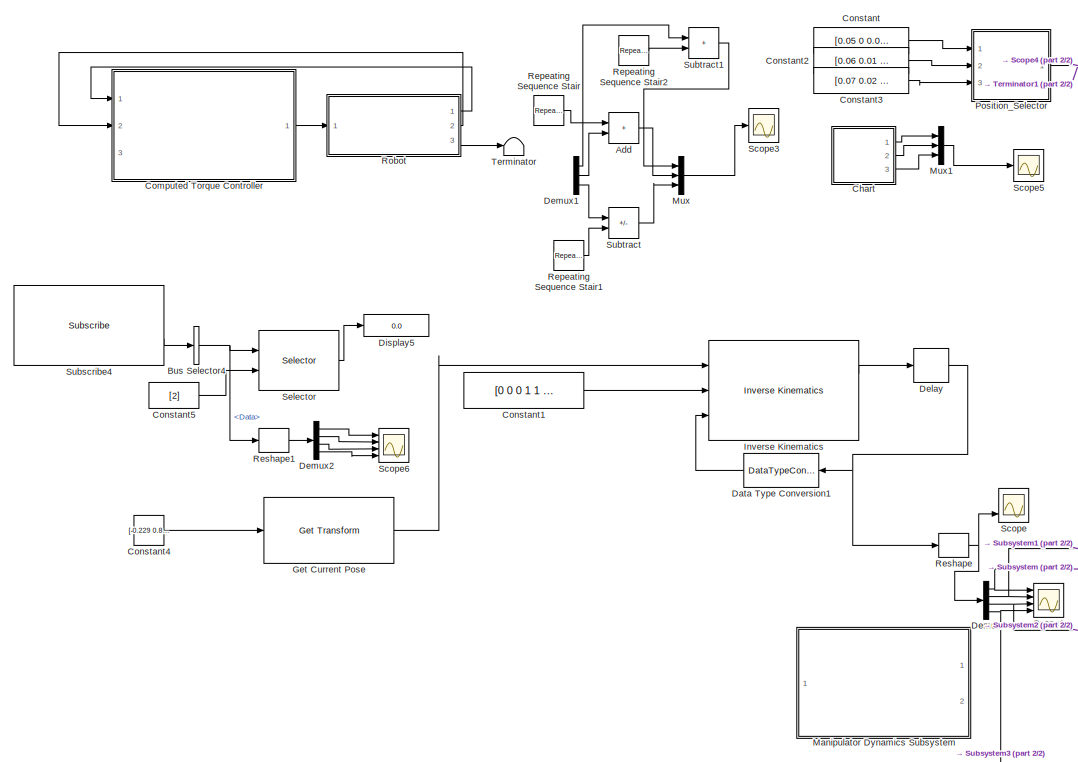
[diagram: root canvas - part 1/2, left side, full height]
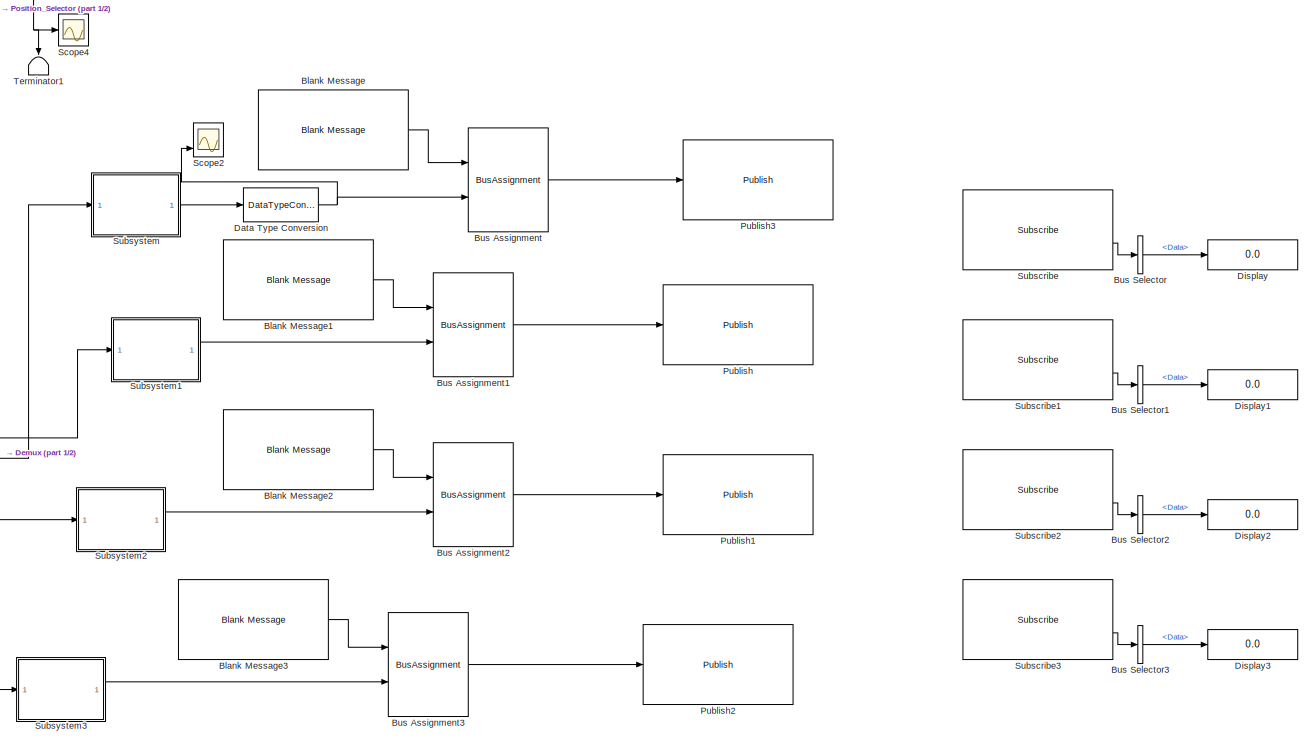
[diagram: root canvas - part 2/2, right side, full height]
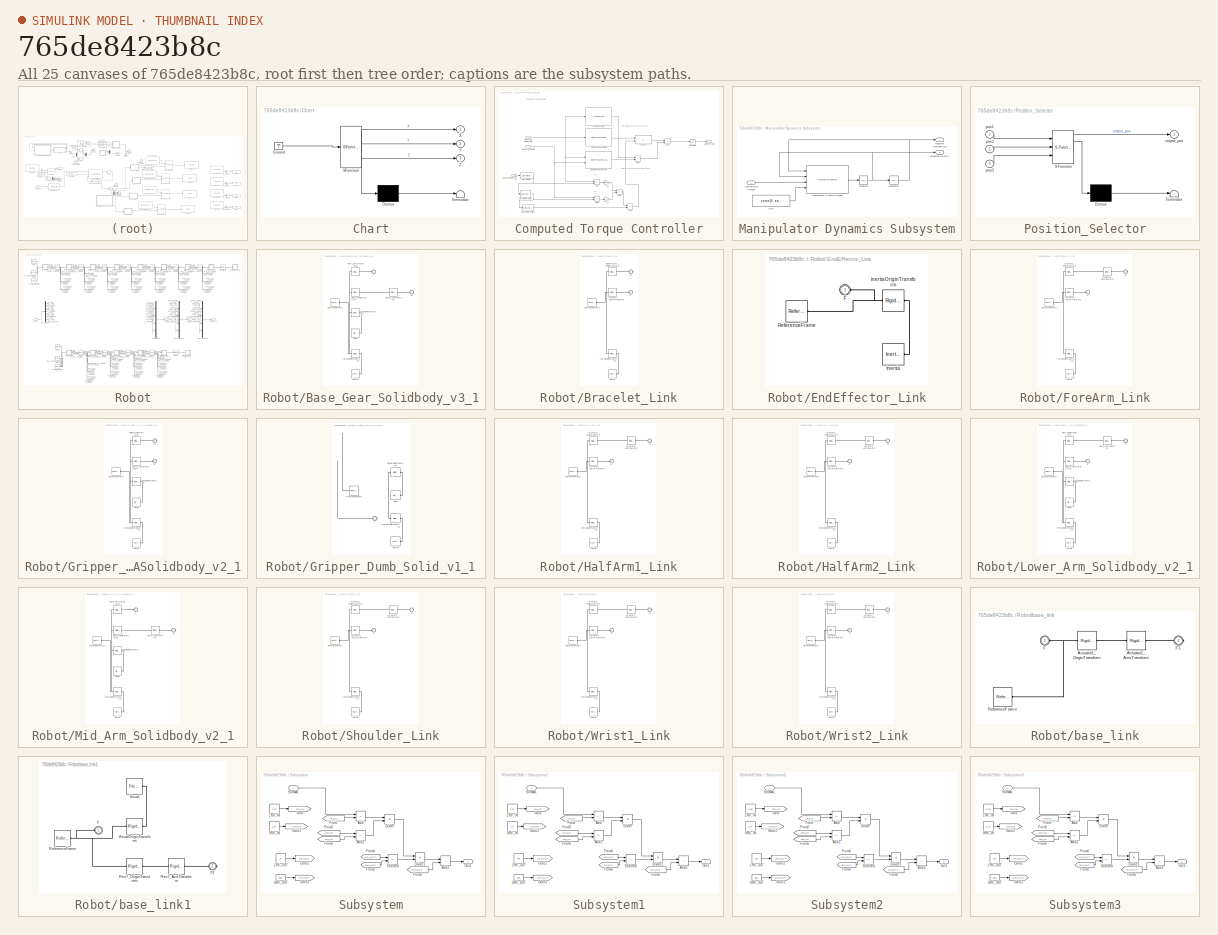
[diagram: thumbnail index - all 25 canvases of the model, root first then tree order]
MODEL slx_765de8423b8c
KIND model
CONFIG AbsTol = auto
CONFIG EnableMultiTasking = off
CONFIG FixedStep = auto
CONFIG MaxStep = auto
CONFIG MinStep = auto
CONFIG RelTol = 1e-3
CONFIG SampleTimeConstraint = Unconstrained
CONFIG SolverName = FixedStepAuto
CONFIG StartTime = 0.0
CONFIG StopTime = inf
WORKSPACE source: mxarray member
WORKSPACE SL_ROS_VariableLengthArrays_MaxSizes: object (value not decoded)
WORKSPACE dq0 = [0 0 0 0]
WORKSPACE q0 = [0 0 0 0]
WORKSPACE robotToTest: robotics.RigidBodyTree (value not decoded)
BLOCK [Sum] Add
  Commented = on
  IconShape = rectangular
  Ports = [2, 1]
BLOCK [Reference] Blank Message  REF=robotlib/Blank Message
  Ports = [0, 1]
  SourceBlock = robotlib/Blank Message
  SourceProductBaseCode = RR
  SourceType = ROS Blank Message
BLOCK [Reference] Blank Message1  REF=robotlib/Blank Message
  Ports = [0, 1]
  SourceBlock = robotlib/Blank Message
  SourceProductBaseCode = RR
  SourceType = ROS Blank Message
BLOCK [Reference] Blank Message2  REF=robotlib/Blank Message
  Ports = [0, 1]
  SourceBlock = robotlib/Blank Message
  SourceProductBaseCode = RR
  SourceType = ROS Blank Message
BLOCK [Reference] Blank Message3  REF=robotlib/Blank Message
  Ports = [0, 1]
  SourceBlock = robotlib/Blank Message
  SourceProductBaseCode = RR
  SourceType = ROS Blank Message
BLOCK [BusAssignment] Bus Assignment
  AssignedSignals = Data
  Ports = [2, 1]
BLOCK [BusAssignment] Bus Assignment1
  AssignedSignals = Data
  Ports = [2, 1]
BLOCK [BusAssignment] Bus Assignment2
  AssignedSignals = Data
  Ports = [2, 1]
BLOCK [BusAssignment] Bus Assignment3
  AssignedSignals = Data
  Ports = [2, 1]
BLOCK [BusSelector] Bus Selector
  OutputSignals = Data
  Ports = [1, 1]
BLOCK [BusSelector] Bus Selector1
  OutputSignals = Data
  Ports = [1, 1]
BLOCK [BusSelector] Bus Selector2
  OutputSignals = Data
  Ports = [1, 1]
BLOCK [BusSelector] Bus Selector3
  OutputSignals = Data
  Ports = [1, 1]
BLOCK [BusSelector] Bus Selector4
  OutputSignals = Data
  Ports = [1, 1]
BLOCK [SubSystem] Chart
  ErrorFcn = Stateflow.Translate.translate
  PermitHierarchicalResolution = ExplicitOnly
  Ports = [0, 3]
  RequestExecContextInheritance = off
  SFBlockType = Chart
  TreatAsAtomicUnit = on
BLOCK [Demux] Chart/ Demux 
  Outputs = 1
  Ports = [1, 1]
BLOCK [Ground] Chart/ Ground 
BLOCK [S-Function] Chart/ SFunction 
  EnableBusSupport = on
  FunctionName = sf_sfun
  PortCounts = [1 4]
  Ports = [1, 4]
  SFcnIsStateOwnerBlock = off
  SFunctionDeploymentMode = off
  Tag = Stateflow S-Function 1
BLOCK [Terminator] Chart/ Terminator 
BLOCK [Outport] Chart/X
BLOCK [Outport] Chart/Y
  Port = 2
BLOCK [Outport] Chart/Z
  Port = 3
BLOCK [SubSystem] Computed Torque Controller
  Commented = on
  Ports = [3, 1]
  RequestExecContextInheritance = off
BLOCK [Sum] Computed Torque Controller/Add
  IconShape = rectangular
  Inputs = -+
  Ports = [2, 1]
BLOCK [Sum] Computed Torque Controller/Add1
  IconShape = rectangular
  Ports = [2, 1]
BLOCK [Sum] Computed Torque Controller/Add2
  IconShape = rectangular
  Inputs = +-
  Ports = [2, 1]
BLOCK [Sum] Computed Torque Controller/Add3
  IconShape = rectangular
  Inputs = +-
  Ports = [2, 1]
BLOCK [Sum] Computed Torque Controller/Add4
  IconShape = rectangular
  Ports = [2, 1]
BLOCK [Sum] Computed Torque Controller/Add5
  IconShape = rectangular
  Ports = [2, 1]
BLOCK [Outport] Computed Torque Controller/Applied Torque
  VectorParamsAs1DForOutWhenUnconnected = off
BLOCK [Inport] Computed Torque Controller/Desired Configuration
  Port = 3
BLOCK [Reference] Computed Torque Controller/Discrete Derivative  REF=simulink/Discrete/Discrete Derivative
  Ports = [1, 1]
  SourceBlock = simulink/Discrete/Discrete Derivative
  SourceProductBaseCode = SL
  SourceType = Discrete Derivative
BLOCK [Reference] Computed Torque Controller/Discrete Derivative1  REF=simulink/Discrete/Discrete Derivative
  Ports = [1, 1]
  SourceBlock = simulink/Discrete/Discrete Derivative
  SourceProductBaseCode = SL
  SourceType = Discrete Derivative
BLOCK [DiscreteFilter] Computed Torque Controller/Discrete Filter
  Denominator = [1]
  InitialStates = repmat(q0',19,1)
  InputPortMap = u0
  Numerator = ones(1,20)*1/20
  Ports = [1, 1]
BLOCK [Reference] Computed Torque Controller/Gravity Torque  REF=robotmaniplib/Gravity Torque
  Ports = [1, 1]
  SourceBlock = robotmaniplib/Gravity Torque
  SourceProductBaseCode = RO
  SourceType = Gravity Torque
BLOCK [Reference] Computed Torque Controller/Joint Space Mass Matrix  REF=robotmaniplib/Joint Space Mass Matrix
  Ports = [1, 1]
  SourceBlock = robotmaniplib/Joint Space Mass Matrix
  SourceProductBaseCode = RO
  SourceType = Joint Space Mass Matrix
BLOCK [Gain] Computed Torque Controller/Kd
  Gain = 20
BLOCK [Gain] Computed Torque Controller/Kp
  Gain = 100
BLOCK [Inport] Computed Torque Controller/Measured Configuration
  NameLocation = top
BLOCK [Inport] Computed Torque Controller/Measured Velocities
  Port = 2
BLOCK [Product] Computed Torque Controller/Product
  Multiplication = Matrix(*)
  Ports = [2, 1]
BLOCK [Saturate] Computed Torque Controller/Saturation
  LowerLimit = -100
  UpperLimit = 100
BLOCK [Reference] Computed Torque Controller/Velocity Product Torque  REF=robotmaniplib/Velocity Product Torque
  Ports = [2, 1]
  SourceBlock = robotmaniplib/Velocity Product Torque
  SourceProductBaseCode = RO
  SourceType = Velocity Product Torque
BLOCK [Constant] Constant
  Value = [0.05 0 0.05]
BLOCK [Constant] Constant1
  Value = [0 0 0 1 1 1]
BLOCK [Constant] Constant2
  Value = [0.06 0.01 0.04]
BLOCK [Constant] Constant3
  Value = [0.07 0.02 0.03]
BLOCK [Constant] Constant4
  Value = [-0.229 0.857 -0.741 -0.612]
BLOCK [Constant] Constant5
  Value = [2]
BLOCK [DataTypeConversion] Data Type Conversion
  OutDataTypeStr = single
  RndMeth = Floor
  SaturateOnIntegerOverflow = off
BLOCK [DataTypeConversion] Data Type Conversion1
  OutDataTypeStr = double
  RndMeth = Floor
  SaturateOnIntegerOverflow = off
BLOCK [Delay] Delay
  DelayLength = 1
  InitialCondition = q0
  InputPortMap = u0
  Ports = [1, 1]
BLOCK [Demux] Demux
  Ports = [1, 4]
BLOCK [Demux] Demux1
  Commented = on
  Outputs = 3
  Ports = [1, 3]
BLOCK [Demux] Demux2
  Ports = [1, 4]
BLOCK [Display] Display
  Decimation = 1
  Ports = [1]
BLOCK [Display] Display1
  Decimation = 1
  Ports = [1]
BLOCK [Display] Display2
  Decimation = 1
  Ports = [1]
BLOCK [Display] Display3
  Decimation = 1
  Ports = [1]
BLOCK [Display] Display5
  Decimation = 1
  Ports = [1]
BLOCK [Reference] Get Current Pose  REF=robotmaniplib/Get Transform
  Ports = [1, 1]
  SourceBlock = robotmaniplib/Get Transform
  SourceProductBaseCode = RO
  SourceType = Get Transform
BLOCK [Reference] Inverse Kinematics  REF=robotmaniplib/Inverse Kinematics
  Ports = [3, 2]
  SourceBlock = robotmaniplib/Inverse Kinematics
  SourceProductBaseCode = RO
  SourceType = Inverse Kinematics
BLOCK [SubSystem] Manipulator Dynamics Subsystem
  Commented = on
  Ports = [1, 2]
  RequestExecContextInheritance = off
BLOCK [Inport] Manipulator Dynamics Subsystem/Applied Joint Torques
BLOCK [Integrator] Manipulator Dynamics Subsystem/Integrator
  Ports = [1, 1]
BLOCK [Integrator] Manipulator Dynamics Subsystem/Integrator1
  InitialCondition = q0
  Ports = [1, 1]
BLOCK [Reference] Manipulator Dynamics Subsystem/Manipulator Dynamics Model  REF=robotmaniplib/Forward Dynamics
  Ports = [4, 1]
  SourceBlock = robotmaniplib/Forward Dynamics
  SourceProductBaseCode = RO
  SourceType = Forward Dynamics
BLOCK [Outport] Manipulator Dynamics Subsystem/Measured Configuration
  VectorParamsAs1DForOutWhenUnconnected = off
BLOCK [Outport] Manipulator Dynamics Subsystem/Measured Velocity
  Port = 2
  VectorParamsAs1DForOutWhenUnconnected = off
BLOCK [Constant] Manipulator Dynamics Subsystem/Zero
  OutDataTypeStr = Inherit: Inherit via back propagation
  Value = zeros(6, sawyer.NumBodies)
BLOCK [Mux] Mux
  Commented = on
  DisplayOption = bar
  Inputs = 3
  Ports = [3, 1]
BLOCK [Mux] Mux1
  DisplayOption = bar
  Inputs = 3
  Ports = [3, 1]
BLOCK [SubSystem] Position_Selector
  ErrorFcn = Stateflow.Translate.translate
  PermitHierarchicalResolution = ExplicitOnly
  Ports = [3, 1]
  RequestExecContextInheritance = off
  SFBlockType = Chart
  TreatAsAtomicUnit = on
BLOCK [Demux] Position_Selector/ Demux 
  Outputs = 1
  Ports = [1, 1]
BLOCK [S-Function] Position_Selector/ SFunction 
  EnableBusSupport = on
  FunctionName = sf_sfun
  PortCounts = [3 2]
  Ports = [3, 2]
  SFcnIsStateOwnerBlock = off
  SFunctionDeploymentMode = off
  Tag = Stateflow S-Function 3
BLOCK [Terminator] Position_Selector/ Terminator 
BLOCK [Outport] Position_Selector/output_pos
BLOCK [Inport] Position_Selector/pos1
BLOCK [Inport] Position_Selector/pos2
  Port = 2
BLOCK [Inport] Position_Selector/pos3
  Port = 3
BLOCK [Reference] Publish  REF=robotlib/Publish
  Ports = [1]
  SourceBlock = robotlib/Publish
  SourceProductBaseCode = RR
  SourceType = ROS Publish
BLOCK [Reference] Publish1  REF=robotlib/Publish
  Ports = [1]
  SourceBlock = robotlib/Publish
  SourceProductBaseCode = RR
  SourceType = ROS Publish
BLOCK [Reference] Publish2  REF=robotlib/Publish
  Ports = [1]
  SourceBlock = robotlib/Publish
  SourceProductBaseCode = RR
  SourceType = ROS Publish
BLOCK [Reference] Publish3  REF=robotlib/Publish
  Ports = [1]
  SourceBlock = robotlib/Publish
  SourceProductBaseCode = RR
  SourceType = ROS Publish
BLOCK [Reference] Repeating Sequence Stair  REF=simulink/Sources/Repeating
Sequence
Stair
  Commented = on
  Ports = [0, 1]
  SourceBlock = simulink/Sources/Repeating\nSequence\nStair
  SourceProductBaseCode = SL
  SourceType = Repeating Sequence Stair
BLOCK [Reference] Repeating Sequence Stair1  REF=simulink/Sources/Repeating
Sequence
Stair
  Commented = on
  Ports = [0, 1]
  SourceBlock = simulink/Sources/Repeating\nSequence\nStair
  SourceProductBaseCode = SL
  SourceType = Repeating Sequence Stair
BLOCK [Reference] Repeating Sequence Stair2  REF=simulink/Sources/Repeating
Sequence
Stair
  Commented = on
  Ports = [0, 1]
  SourceBlock = simulink/Sources/Repeating\nSequence\nStair
  SourceProductBaseCode = SL
  SourceType = Repeating Sequence Stair
BLOCK [Reshape] Reshape
  Ports = [1, 1]
BLOCK [Reshape] Reshape1
  Ports = [1, 1]
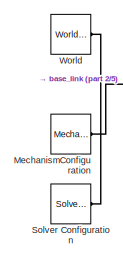
[diagram: Robot - part 1/5, top left region]
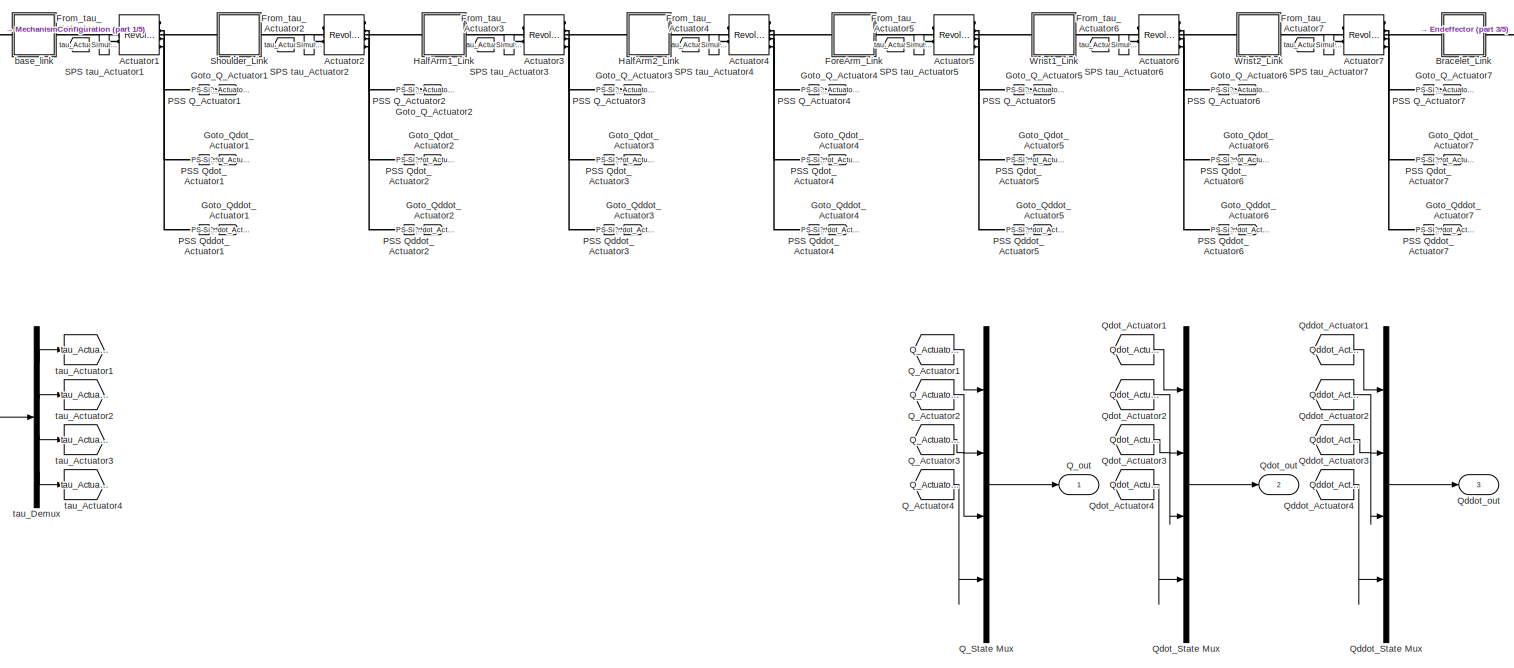
[diagram: Robot - part 2/5, full width, middle band]
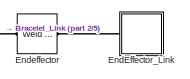
[diagram: Robot - part 3/5, top right region]
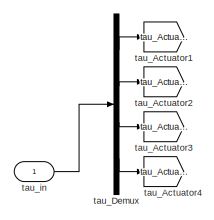
[diagram: Robot - part 4/5, middle left region]
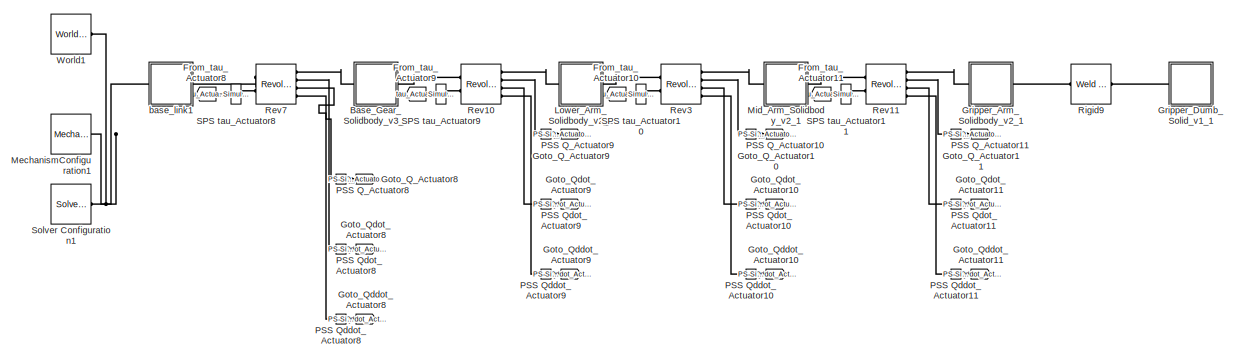
[diagram: Robot - part 5/5, bottom center region]
BLOCK [SubSystem] Robot
  Commented = on
  Ports = [1, 3]
  RequestExecContextInheritance = off
BLOCK [Reference] Robot/Actuator1  REF=sm_lib/Joints/Revolute Joint
  Commented = on
  Ports = [0, 0, 0, 0, 0, 2, 4]
  SourceBlock = sm_lib/Joints/Revolute Joint
  SourceProductBaseCode = MS
  SourceType = Revolute Joint
BLOCK [Reference] Robot/Actuator2  REF=sm_lib/Joints/Revolute Joint
  Commented = on
  Ports = [0, 0, 0, 0, 0, 2, 4]
  SourceBlock = sm_lib/Joints/Revolute Joint
  SourceProductBaseCode = MS
  SourceType = Revolute Joint
BLOCK [Reference] Robot/Actuator3  REF=sm_lib/Joints/Revolute Joint
  Commented = on
  Ports = [0, 0, 0, 0, 0, 2, 4]
  SourceBlock = sm_lib/Joints/Revolute Joint
  SourceProductBaseCode = MS
  SourceType = Revolute Joint
BLOCK [Reference] Robot/Actuator4  REF=sm_lib/Joints/Revolute Joint
  Commented = on
  Ports = [0, 0, 0, 0, 0, 2, 4]
  SourceBlock = sm_lib/Joints/Revolute Joint
  SourceProductBaseCode = MS
  SourceType = Revolute Joint
BLOCK [Reference] Robot/Actuator5  REF=sm_lib/Joints/Revolute Joint
  Commented = on
  Ports = [0, 0, 0, 0, 0, 2, 4]
  SourceBlock = sm_lib/Joints/Revolute Joint
  SourceProductBaseCode = MS
  SourceType = Revolute Joint
BLOCK [Reference] Robot/Actuator6  REF=sm_lib/Joints/Revolute Joint
  Commented = on
  Ports = [0, 0, 0, 0, 0, 2, 4]
  SourceBlock = sm_lib/Joints/Revolute Joint
  SourceProductBaseCode = MS
  SourceType = Revolute Joint
BLOCK [Reference] Robot/Actuator7  REF=sm_lib/Joints/Revolute Joint
  Commented = on
  Ports = [0, 0, 0, 0, 0, 2, 4]
  SourceBlock = sm_lib/Joints/Revolute Joint
  SourceProductBaseCode = MS
  SourceType = Revolute Joint
BLOCK [SubSystem] Robot/Base_Gear_Solidbody_v3_1
  Ports = [0, 0, 0, 0, 0, 1, 1]
  RequestExecContextInheritance = off
BLOCK [PMIOPort] Robot/Base_Gear_Solidbody_v3_1/F
  Side = Left
BLOCK [PMIOPort] Robot/Base_Gear_Solidbody_v3_1/F1
  Port = 2
  Side = Right
BLOCK [Reference] Robot/Base_Gear_Solidbody_v3_1/Inertia  REF=sm_lib/Body Elements/Inertia
  Ports = [0, 0, 0, 0, 0, 0, 1]
  SourceBlock = sm_lib/Body Elements/Inertia
  SourceProductBaseCode = MS
  SourceType = Inertia
BLOCK [Reference] Robot/Base_Gear_Solidbody_v3_1/InertiaOriginTransform  REF=sm_lib/Frames and
Transforms/Rigid
Transform
  Ports = [0, 0, 0, 0, 0, 1, 1]
  SourceBlock = sm_lib/Frames and\nTransforms/Rigid\nTransform
  SourceProductBaseCode = MS
  SourceType = Rigid\nTransform
BLOCK [Reference] Robot/Base_Gear_Solidbody_v3_1/ReferenceFrame  REF=sm_lib/Frames and
Transforms/Reference
Frame
  Ports = [0, 0, 0, 0, 0, 0, 1]
  SourceBlock = sm_lib/Frames and\nTransforms/Reference\nFrame
  SourceProductBaseCode = MS
  SourceType = Reference\nFrame
BLOCK [Reference] Robot/Base_Gear_Solidbody_v3_1/Rev10_AxisTransform  REF=sm_lib/Frames and
Transforms/Rigid
Transform
  Ports = [0, 0, 0, 0, 0, 1, 1]
  SourceBlock = sm_lib/Frames and\nTransforms/Rigid\nTransform
  SourceProductBaseCode = MS
  SourceType = Rigid\nTransform
BLOCK [Reference] Robot/Base_Gear_Solidbody_v3_1/Rev10_OriginTransform  REF=sm_lib/Frames and
Transforms/Rigid
Transform
  Ports = [0, 0, 0, 0, 0, 1, 1]
  SourceBlock = sm_lib/Frames and\nTransforms/Rigid\nTransform
  SourceProductBaseCode = MS
  SourceType = Rigid\nTransform
BLOCK [Reference] Robot/Base_Gear_Solidbody_v3_1/Rev7_AxisInvTransform  REF=sm_lib/Frames and
Transforms/Rigid
Transform
  Ports = [0, 0, 0, 0, 0, 1, 1]
  SourceBlock = sm_lib/Frames and\nTransforms/Rigid\nTransform
  SourceProductBaseCode = MS
  SourceType = Rigid\nTransform
BLOCK [Reference] Robot/Base_Gear_Solidbody_v3_1/Visual  REF=sm_lib/Body Elements/File Solid
  Commented = on
  Ports = [0, 0, 0, 0, 0, 0, 1]
  SourceBlock = sm_lib/Body Elements/File Solid
  SourceProductBaseCode = MS
  SourceType = File Solid
BLOCK [Reference] Robot/Base_Gear_Solidbody_v3_1/VisualOriginTransform  REF=sm_lib/Frames and
Transforms/Rigid
Transform
  Commented = on
  Ports = [0, 0, 0, 0, 0, 1, 1]
  SourceBlock = sm_lib/Frames and\nTransforms/Rigid\nTransform
  SourceProductBaseCode = MS
  SourceType = Rigid\nTransform
BLOCK [SubSystem] Robot/Bracelet_Link
  Commented = on
  Ports = [0, 0, 0, 0, 0, 1, 1]
  RequestExecContextInheritance = off
BLOCK [Reference] Robot/Bracelet_Link/Actuator7_AxisInvTransform  REF=sm_lib/Frames and
Transforms/Rigid
Transform
  Ports = [0, 0, 0, 0, 0, 1, 1]
  SourceBlock = sm_lib/Frames and\nTransforms/Rigid\nTransform
  SourceProductBaseCode = MS
  SourceType = Rigid\nTransform
BLOCK [Reference] Robot/Bracelet_Link/Endeffector_OriginTransform  REF=sm_lib/Frames and
Transforms/Rigid
Transform
  Ports = [0, 0, 0, 0, 0, 1, 1]
  SourceBlock = sm_lib/Frames and\nTransforms/Rigid\nTransform
  SourceProductBaseCode = MS
  SourceType = Rigid\nTransform
BLOCK [PMIOPort] Robot/Bracelet_Link/F
  Side = Left
BLOCK [PMIOPort] Robot/Bracelet_Link/F1
  Port = 2
  Side = Right
BLOCK [Reference] Robot/Bracelet_Link/Inertia  REF=sm_lib/Body Elements/Inertia
  Ports = [0, 0, 0, 0, 0, 0, 1]
  SourceBlock = sm_lib/Body Elements/Inertia
  SourceProductBaseCode = MS
  SourceType = Inertia
BLOCK [Reference] Robot/Bracelet_Link/InertiaOriginTransform  REF=sm_lib/Frames and
Transforms/Rigid
Transform
  Ports = [0, 0, 0, 0, 0, 1, 1]
  SourceBlock = sm_lib/Frames and\nTransforms/Rigid\nTransform
  SourceProductBaseCode = MS
  SourceType = Rigid\nTransform
BLOCK [Reference] Robot/Bracelet_Link/ReferenceFrame  REF=sm_lib/Frames and
Transforms/Reference
Frame
  Ports = [0, 0, 0, 0, 0, 0, 1]
  SourceBlock = sm_lib/Frames and\nTransforms/Reference\nFrame
  SourceProductBaseCode = MS
  SourceType = Reference\nFrame
BLOCK [SubSystem] Robot/EndEffector_Link
  Commented = on
  Ports = [0, 0, 0, 0, 0, 1]
  RequestExecContextInheritance = off
BLOCK [PMIOPort] Robot/EndEffector_Link/F
  Side = Left
BLOCK [Reference] Robot/EndEffector_Link/Inertia  REF=sm_lib/Body Elements/Inertia
  Ports = [0, 0, 0, 0, 0, 0, 1]
  SourceBlock = sm_lib/Body Elements/Inertia
  SourceProductBaseCode = MS
  SourceType = Inertia
BLOCK [Reference] Robot/EndEffector_Link/InertiaOriginTransform  REF=sm_lib/Frames and
Transforms/Rigid
Transform
  Ports = [0, 0, 0, 0, 0, 1, 1]
  SourceBlock = sm_lib/Frames and\nTransforms/Rigid\nTransform
  SourceProductBaseCode = MS
  SourceType = Rigid\nTransform
BLOCK [Reference] Robot/EndEffector_Link/ReferenceFrame  REF=sm_lib/Frames and
Transforms/Reference
Frame
  Ports = [0, 0, 0, 0, 0, 0, 1]
  SourceBlock = sm_lib/Frames and\nTransforms/Reference\nFrame
  SourceProductBaseCode = MS
  SourceType = Reference\nFrame
BLOCK [Reference] Robot/Endeffector  REF=sm_lib/Joints/Weld Joint
  Commented = on
  Ports = [0, 0, 0, 0, 0, 1, 1]
  SourceBlock = sm_lib/Joints/Weld Joint
  SourceProductBaseCode = MS
  SourceType = Weld Joint
BLOCK [SubSystem] Robot/ForeArm_Link
  Commented = on
  Ports = [0, 0, 0, 0, 0, 1, 1]
  RequestExecContextInheritance = off
BLOCK [Reference] Robot/ForeArm_Link/Actuator4_AxisInvTransform  REF=sm_lib/Frames and
Transforms/Rigid
Transform
  Ports = [0, 0, 0, 0, 0, 1, 1]
  SourceBlock = sm_lib/Frames and\nTransforms/Rigid\nTransform
  SourceProductBaseCode = MS
  SourceType = Rigid\nTransform
BLOCK [Reference] Robot/ForeArm_Link/Actuator5_AxisTransform  REF=sm_lib/Frames and
Transforms/Rigid
Transform
  Ports = [0, 0, 0, 0, 0, 1, 1]
  SourceBlock = sm_lib/Frames and\nTransforms/Rigid\nTransform
  SourceProductBaseCode = MS
  SourceType = Rigid\nTransform
BLOCK [Reference] Robot/ForeArm_Link/Actuator5_OriginTransform  REF=sm_lib/Frames and
Transforms/Rigid
Transform
  Ports = [0, 0, 0, 0, 0, 1, 1]
  SourceBlock = sm_lib/Frames and\nTransforms/Rigid\nTransform
  SourceProductBaseCode = MS
  SourceType = Rigid\nTransform
BLOCK [PMIOPort] Robot/ForeArm_Link/F
  Side = Left
BLOCK [PMIOPort] Robot/ForeArm_Link/F1
  Port = 2
  Side = Right
BLOCK [Reference] Robot/ForeArm_Link/Inertia  REF=sm_lib/Body Elements/Inertia
  Ports = [0, 0, 0, 0, 0, 0, 1]
  SourceBlock = sm_lib/Body Elements/Inertia
  SourceProductBaseCode = MS
  SourceType = Inertia
BLOCK [Reference] Robot/ForeArm_Link/InertiaOriginTransform  REF=sm_lib/Frames and
Transforms/Rigid
Transform
  Ports = [0, 0, 0, 0, 0, 1, 1]
  SourceBlock = sm_lib/Frames and\nTransforms/Rigid\nTransform
  SourceProductBaseCode = MS
  SourceType = Rigid\nTransform
BLOCK [Reference] Robot/ForeArm_Link/ReferenceFrame  REF=sm_lib/Frames and
Transforms/Reference
Frame
  Ports = [0, 0, 0, 0, 0, 0, 1]
  SourceBlock = sm_lib/Frames and\nTransforms/Reference\nFrame
  SourceProductBaseCode = MS
  SourceType = Reference\nFrame
BLOCK [From] Robot/From_tau_Actuator1
  Commented = on
  GotoTag = tau_Actuator1
BLOCK [From] Robot/From_tau_Actuator10
  GotoTag = tau_Actuator3
BLOCK [From] Robot/From_tau_Actuator11
  GotoTag = tau_Actuator4
BLOCK [From] Robot/From_tau_Actuator2
  Commented = on
  GotoTag = tau_Actuator2
BLOCK [From] Robot/From_tau_Actuator3
  Commented = on
  GotoTag = tau_Actuator3
BLOCK [From] Robot/From_tau_Actuator4
  Commented = on
  GotoTag = tau_Actuator4
BLOCK [From] Robot/From_tau_Actuator5
  Commented = on
  GotoTag = tau_Actuator5
BLOCK [From] Robot/From_tau_Actuator6
  Commented = on
  GotoTag = tau_Actuator6
BLOCK [From] Robot/From_tau_Actuator7
  Commented = on
  GotoTag = tau_Actuator7
BLOCK [From] Robot/From_tau_Actuator8
  GotoTag = tau_Actuator1
BLOCK [From] Robot/From_tau_Actuator9
  GotoTag = tau_Actuator2
BLOCK [Goto] Robot/Goto_Q_Actuator1
  Commented = on
  GotoTag = Q_Actuator1
BLOCK [Goto] Robot/Goto_Q_Actuator10
  GotoTag = Q_Actuator3
BLOCK [Goto] Robot/Goto_Q_Actuator11
  GotoTag = Q_Actuator4
BLOCK [Goto] Robot/Goto_Q_Actuator2
  Commented = on
  GotoTag = Q_Actuator2
BLOCK [Goto] Robot/Goto_Q_Actuator3
  Commented = on
  GotoTag = Q_Actuator3
BLOCK [Goto] Robot/Goto_Q_Actuator4
  Commented = on
  GotoTag = Q_Actuator4
BLOCK [Goto] Robot/Goto_Q_Actuator5
  Commented = on
  GotoTag = Q_Actuator5
BLOCK [Goto] Robot/Goto_Q_Actuator6
  Commented = on
  GotoTag = Q_Actuator6
BLOCK [Goto] Robot/Goto_Q_Actuator7
  Commented = on
  GotoTag = Q_Actuator7
BLOCK [Goto] Robot/Goto_Q_Actuator8
  GotoTag = Q_Actuator1
BLOCK [Goto] Robot/Goto_Q_Actuator9
  GotoTag = Q_Actuator2
BLOCK [Goto] Robot/Goto_Qddot_Actuator1
  Commented = on
  GotoTag = Qddot_Actuator1
BLOCK [Goto] Robot/Goto_Qddot_Actuator10
  GotoTag = Qddot_Actuator3
BLOCK [Goto] Robot/Goto_Qddot_Actuator11
  GotoTag = Qddot_Actuator4
BLOCK [Goto] Robot/Goto_Qddot_Actuator2
  Commented = on
  GotoTag = Qddot_Actuator2
BLOCK [Goto] Robot/Goto_Qddot_Actuator3
  Commented = on
  GotoTag = Qddot_Actuator3
BLOCK [Goto] Robot/Goto_Qddot_Actuator4
  Commented = on
  GotoTag = Qddot_Actuator4
BLOCK [Goto] Robot/Goto_Qddot_Actuator5
  Commented = on
  GotoTag = Qddot_Actuator5
BLOCK [Goto] Robot/Goto_Qddot_Actuator6
  Commented = on
  GotoTag = Qddot_Actuator6
BLOCK [Goto] Robot/Goto_Qddot_Actuator7
  Commented = on
  GotoTag = Qddot_Actuator7
BLOCK [Goto] Robot/Goto_Qddot_Actuator8
  GotoTag = Qddot_Actuator1
BLOCK [Goto] Robot/Goto_Qddot_Actuator9
  GotoTag = Qddot_Actuator2
BLOCK [Goto] Robot/Goto_Qdot_Actuator1
  Commented = on
  GotoTag = Qdot_Actuator1
BLOCK [Goto] Robot/Goto_Qdot_Actuator10
  GotoTag = Qdot_Actuator3
BLOCK [Goto] Robot/Goto_Qdot_Actuator11
  GotoTag = Qdot_Actuator4
BLOCK [Goto] Robot/Goto_Qdot_Actuator2
  Commented = on
  GotoTag = Qdot_Actuator2
BLOCK [Goto] Robot/Goto_Qdot_Actuator3
  Commented = on
  GotoTag = Qdot_Actuator3
BLOCK [Goto] Robot/Goto_Qdot_Actuator4
  Commented = on
  GotoTag = Qdot_Actuator4
BLOCK [Goto] Robot/Goto_Qdot_Actuator5
  Commented = on
  GotoTag = Qdot_Actuator5
BLOCK [Goto] Robot/Goto_Qdot_Actuator6
  Commented = on
  GotoTag = Qdot_Actuator6
BLOCK [Goto] Robot/Goto_Qdot_Actuator7
  Commented = on
  GotoTag = Qdot_Actuator7
BLOCK [Goto] Robot/Goto_Qdot_Actuator8
  GotoTag = Qdot_Actuator1
BLOCK [Goto] Robot/Goto_Qdot_Actuator9
  GotoTag = Qdot_Actuator2
BLOCK [SubSystem] Robot/Gripper_Arm_Solidbody_v2_1
  Ports = [0, 0, 0, 0, 0, 1, 1]
  RequestExecContextInheritance = off
BLOCK [PMIOPort] Robot/Gripper_Arm_Solidbody_v2_1/F
  Side = Left
BLOCK [PMIOPort] Robot/Gripper_Arm_Solidbody_v2_1/F1
  Port = 2
  Side = Right
BLOCK [Reference] Robot/Gripper_Arm_Solidbody_v2_1/Inertia  REF=sm_lib/Body Elements/Inertia
  Ports = [0, 0, 0, 0, 0, 0, 1]
  SourceBlock = sm_lib/Body Elements/Inertia
  SourceProductBaseCode = MS
  SourceType = Inertia
BLOCK [Reference] Robot/Gripper_Arm_Solidbody_v2_1/InertiaOriginTransform  REF=sm_lib/Frames and
Transforms/Rigid
Transform
  Ports = [0, 0, 0, 0, 0, 1, 1]
  SourceBlock = sm_lib/Frames and\nTransforms/Rigid\nTransform
  SourceProductBaseCode = MS
  SourceType = Rigid\nTransform
BLOCK [Reference] Robot/Gripper_Arm_Solidbody_v2_1/ReferenceFrame  REF=sm_lib/Frames and
Transforms/Reference
Frame
  Ports = [0, 0, 0, 0, 0, 0, 1]
  SourceBlock = sm_lib/Frames and\nTransforms/Reference\nFrame
  SourceProductBaseCode = MS
  SourceType = Reference\nFrame
BLOCK [Reference] Robot/Gripper_Arm_Solidbody_v2_1/Rev11_AxisInvTransform  REF=sm_lib/Frames and
Transforms/Rigid
Transform
  Ports = [0, 0, 0, 0, 0, 1, 1]
  SourceBlock = sm_lib/Frames and\nTransforms/Rigid\nTransform
  SourceProductBaseCode = MS
  SourceType = Rigid\nTransform
BLOCK [Reference] Robot/Gripper_Arm_Solidbody_v2_1/Rigid9_OriginTransform  REF=sm_lib/Frames and
Transforms/Rigid
Transform
  Ports = [0, 0, 0, 0, 0, 1, 1]
  SourceBlock = sm_lib/Frames and\nTransforms/Rigid\nTransform
  SourceProductBaseCode = MS
  SourceType = Rigid\nTransform
BLOCK [Reference] Robot/Gripper_Arm_Solidbody_v2_1/Visual  REF=sm_lib/Body Elements/File Solid
  Commented = on
  Ports = [0, 0, 0, 0, 0, 0, 1]
  SourceBlock = sm_lib/Body Elements/File Solid
  SourceProductBaseCode = MS
  SourceType = File Solid
BLOCK [Reference] Robot/Gripper_Arm_Solidbody_v2_1/VisualOriginTransform  REF=sm_lib/Frames and
Transforms/Rigid
Transform
  Commented = on
  Ports = [0, 0, 0, 0, 0, 1, 1]
  SourceBlock = sm_lib/Frames and\nTransforms/Rigid\nTransform
  SourceProductBaseCode = MS
  SourceType = Rigid\nTransform
BLOCK [SubSystem] Robot/Gripper_Dumb_Solid_v1_1
  Ports = [0, 0, 0, 0, 0, 1]
  RequestExecContextInheritance = off
BLOCK [PMIOPort] Robot/Gripper_Dumb_Solid_v1_1/F
  Side = Left
BLOCK [Reference] Robot/Gripper_Dumb_Solid_v1_1/Inertia  REF=sm_lib/Body Elements/Inertia
  Ports = [0, 0, 0, 0, 0, 0, 1]
  SourceBlock = sm_lib/Body Elements/Inertia
  SourceProductBaseCode = MS
  SourceType = Inertia
BLOCK [Reference] Robot/Gripper_Dumb_Solid_v1_1/InertiaOriginTransform  REF=sm_lib/Frames and
Transforms/Rigid
Transform
  Ports = [0, 0, 0, 0, 0, 1, 1]
  SourceBlock = sm_lib/Frames and\nTransforms/Rigid\nTransform
  SourceProductBaseCode = MS
  SourceType = Rigid\nTransform
BLOCK [Reference] Robot/Gripper_Dumb_Solid_v1_1/ReferenceFrame  REF=sm_lib/Frames and
Transforms/Reference
Frame
  Ports = [0, 0, 0, 0, 0, 0, 1]
  SourceBlock = sm_lib/Frames and\nTransforms/Reference\nFrame
  SourceProductBaseCode = MS
  SourceType = Reference\nFrame
BLOCK [Reference] Robot/Gripper_Dumb_Solid_v1_1/Visual  REF=sm_lib/Body Elements/File Solid
  Commented = on
  Ports = [0, 0, 0, 0, 0, 0, 1]
  SourceBlock = sm_lib/Body Elements/File Solid
  SourceProductBaseCode = MS
  SourceType = File Solid
BLOCK [Reference] Robot/Gripper_Dumb_Solid_v1_1/VisualOriginTransform  REF=sm_lib/Frames and
Transforms/Rigid
Transform
  Commented = on
  Ports = [0, 0, 0, 0, 0, 1, 1]
  SourceBlock = sm_lib/Frames and\nTransforms/Rigid\nTransform
  SourceProductBaseCode = MS
  SourceType = Rigid\nTransform
BLOCK [SubSystem] Robot/HalfArm1_Link
  Commented = on
  Ports = [0, 0, 0, 0, 0, 1, 1]
  RequestExecContextInheritance = off
BLOCK [Reference] Robot/HalfArm1_Link/Actuator2_AxisInvTransform  REF=sm_lib/Frames and
Transforms/Rigid
Transform
  Ports = [0, 0, 0, 0, 0, 1, 1]
  SourceBlock = sm_lib/Frames and\nTransforms/Rigid\nTransform
  SourceProductBaseCode = MS
  SourceType = Rigid\nTransform
BLOCK [Reference] Robot/HalfArm1_Link/Actuator3_AxisTransform  REF=sm_lib/Frames and
Transforms/Rigid
Transform
  Ports = [0, 0, 0, 0, 0, 1, 1]
  SourceBlock = sm_lib/Frames and\nTransforms/Rigid\nTransform
  SourceProductBaseCode = MS
  SourceType = Rigid\nTransform
BLOCK [Reference] Robot/HalfArm1_Link/Actuator3_OriginTransform  REF=sm_lib/Frames and
Transforms/Rigid
Transform
  Ports = [0, 0, 0, 0, 0, 1, 1]
  SourceBlock = sm_lib/Frames and\nTransforms/Rigid\nTransform
  SourceProductBaseCode = MS
  SourceType = Rigid\nTransform
BLOCK [PMIOPort] Robot/HalfArm1_Link/F
  Side = Left
BLOCK [PMIOPort] Robot/HalfArm1_Link/F1
  Port = 2
  Side = Right
BLOCK [Reference] Robot/HalfArm1_Link/Inertia  REF=sm_lib/Body Elements/Inertia
  Ports = [0, 0, 0, 0, 0, 0, 1]
  SourceBlock = sm_lib/Body Elements/Inertia
  SourceProductBaseCode = MS
  SourceType = Inertia
BLOCK [Reference] Robot/HalfArm1_Link/InertiaOriginTransform  REF=sm_lib/Frames and
Transforms/Rigid
Transform
  Ports = [0, 0, 0, 0, 0, 1, 1]
  SourceBlock = sm_lib/Frames and\nTransforms/Rigid\nTransform
  SourceProductBaseCode = MS
  SourceType = Rigid\nTransform
BLOCK [Reference] Robot/HalfArm1_Link/ReferenceFrame  REF=sm_lib/Frames and
Transforms/Reference
Frame
  Ports = [0, 0, 0, 0, 0, 0, 1]
  SourceBlock = sm_lib/Frames and\nTransforms/Reference\nFrame
  SourceProductBaseCode = MS
  SourceType = Reference\nFrame
BLOCK [SubSystem] Robot/HalfArm2_Link
  Commented = on
  Ports = [0, 0, 0, 0, 0, 1, 1]
  RequestExecContextInheritance = off
BLOCK [Reference] Robot/HalfArm2_Link/Actuator3_AxisInvTransform  REF=sm_lib/Frames and
Transforms/Rigid
Transform
  Ports = [0, 0, 0, 0, 0, 1, 1]
  SourceBlock = sm_lib/Frames and\nTransforms/Rigid\nTransform
  SourceProductBaseCode = MS
  SourceType = Rigid\nTransform
BLOCK [Reference] Robot/HalfArm2_Link/Actuator4_AxisTransform  REF=sm_lib/Frames and
Transforms/Rigid
Transform
  Ports = [0, 0, 0, 0, 0, 1, 1]
  SourceBlock = sm_lib/Frames and\nTransforms/Rigid\nTransform
  SourceProductBaseCode = MS
  SourceType = Rigid\nTransform
BLOCK [Reference] Robot/HalfArm2_Link/Actuator4_OriginTransform  REF=sm_lib/Frames and
Transforms/Rigid
Transform
  Ports = [0, 0, 0, 0, 0, 1, 1]
  SourceBlock = sm_lib/Frames and\nTransforms/Rigid\nTransform
  SourceProductBaseCode = MS
  SourceType = Rigid\nTransform
BLOCK [PMIOPort] Robot/HalfArm2_Link/F
  Side = Left
BLOCK [PMIOPort] Robot/HalfArm2_Link/F1
  Port = 2
  Side = Right
BLOCK [Reference] Robot/HalfArm2_Link/Inertia  REF=sm_lib/Body Elements/Inertia
  Ports = [0, 0, 0, 0, 0, 0, 1]
  SourceBlock = sm_lib/Body Elements/Inertia
  SourceProductBaseCode = MS
  SourceType = Inertia
BLOCK [Reference] Robot/HalfArm2_Link/InertiaOriginTransform  REF=sm_lib/Frames and
Transforms/Rigid
Transform
  Ports = [0, 0, 0, 0, 0, 1, 1]
  SourceBlock = sm_lib/Frames and\nTransforms/Rigid\nTransform
  SourceProductBaseCode = MS
  SourceType = Rigid\nTransform
BLOCK [Reference] Robot/HalfArm2_Link/ReferenceFrame  REF=sm_lib/Frames and
Transforms/Reference
Frame
  Ports = [0, 0, 0, 0, 0, 0, 1]
  SourceBlock = sm_lib/Frames and\nTransforms/Reference\nFrame
  SourceProductBaseCode = MS
  SourceType = Reference\nFrame
BLOCK [SubSystem] Robot/Lower_Arm_Solidbody_v2_1
  Ports = [0, 0, 0, 0, 0, 1, 1]
  RequestExecContextInheritance = off
BLOCK [PMIOPort] Robot/Lower_Arm_Solidbody_v2_1/F
  Side = Left
BLOCK [PMIOPort] Robot/Lower_Arm_Solidbody_v2_1/F1
  Port = 2
  Side = Right
BLOCK [Reference] Robot/Lower_Arm_Solidbody_v2_1/Inertia  REF=sm_lib/Body Elements/Inertia
  Ports = [0, 0, 0, 0, 0, 0, 1]
  SourceBlock = sm_lib/Body Elements/Inertia
  SourceProductBaseCode = MS
  SourceType = Inertia
BLOCK [Reference] Robot/Lower_Arm_Solidbody_v2_1/InertiaOriginTransform  REF=sm_lib/Frames and
Transforms/Rigid
Transform
  Ports = [0, 0, 0, 0, 0, 1, 1]
  SourceBlock = sm_lib/Frames and\nTransforms/Rigid\nTransform
  SourceProductBaseCode = MS
  SourceType = Rigid\nTransform
BLOCK [Reference] Robot/Lower_Arm_Solidbody_v2_1/ReferenceFrame  REF=sm_lib/Frames and
Transforms/Reference
Frame
  Ports = [0, 0, 0, 0, 0, 0, 1]
  SourceBlock = sm_lib/Frames and\nTransforms/Reference\nFrame
  SourceProductBaseCode = MS
  SourceType = Reference\nFrame
BLOCK [Reference] Robot/Lower_Arm_Solidbody_v2_1/Rev10_AxisInvTransform  REF=sm_lib/Frames and
Transforms/Rigid
Transform
  Ports = [0, 0, 0, 0, 0, 1, 1]
  SourceBlock = sm_lib/Frames and\nTransforms/Rigid\nTransform
  SourceProductBaseCode = MS
  SourceType = Rigid\nTransform
BLOCK [Reference] Robot/Lower_Arm_Solidbody_v2_1/Rev3_AxisTransform  REF=sm_lib/Frames and
Transforms/Rigid
Transform
  Ports = [0, 0, 0, 0, 0, 1, 1]
  SourceBlock = sm_lib/Frames and\nTransforms/Rigid\nTransform
  SourceProductBaseCode = MS
  SourceType = Rigid\nTransform
BLOCK [Reference] Robot/Lower_Arm_Solidbody_v2_1/Rev3_OriginTransform  REF=sm_lib/Frames and
Transforms/Rigid
Transform
  Ports = [0, 0, 0, 0, 0, 1, 1]
  SourceBlock = sm_lib/Frames and\nTransforms/Rigid\nTransform
  SourceProductBaseCode = MS
  SourceType = Rigid\nTransform
BLOCK [Reference] Robot/Lower_Arm_Solidbody_v2_1/Visual  REF=sm_lib/Body Elements/File Solid
  Commented = on
  Ports = [0, 0, 0, 0, 0, 0, 1]
  SourceBlock = sm_lib/Body Elements/File Solid
  SourceProductBaseCode = MS
  SourceType = File Solid
BLOCK [Reference] Robot/Lower_Arm_Solidbody_v2_1/VisualOriginTransform  REF=sm_lib/Frames and
Transforms/Rigid
Transform
  Commented = on
  Ports = [0, 0, 0, 0, 0, 1, 1]
  SourceBlock = sm_lib/Frames and\nTransforms/Rigid\nTransform
  SourceProductBaseCode = MS
  SourceType = Rigid\nTransform
BLOCK [Reference] Robot/MechanismConfiguration  REF=sm_lib/Utilities/Mechanism
Configuration
  Commented = on
  Ports = [0, 0, 0, 0, 0, 0, 1]
  SourceBlock = sm_lib/Utilities/Mechanism\nConfiguration
  SourceProductBaseCode = MS
  SourceType = Mechanism\nConfiguration
BLOCK [Reference] Robot/MechanismConfiguration1  REF=sm_lib/Utilities/Mechanism
Configuration
  Ports = [0, 0, 0, 0, 0, 0, 1]
  SourceBlock = sm_lib/Utilities/Mechanism\nConfiguration
  SourceProductBaseCode = MS
  SourceType = Mechanism\nConfiguration
BLOCK [SubSystem] Robot/Mid_Arm_Solidbody_v2_1
  Ports = [0, 0, 0, 0, 0, 1, 1]
  RequestExecContextInheritance = off
BLOCK [PMIOPort] Robot/Mid_Arm_Solidbody_v2_1/F
  Side = Left
BLOCK [PMIOPort] Robot/Mid_Arm_Solidbody_v2_1/F1
  Port = 2
  Side = Right
BLOCK [Reference] Robot/Mid_Arm_Solidbody_v2_1/Inertia  REF=sm_lib/Body Elements/Inertia
  Ports = [0, 0, 0, 0, 0, 0, 1]
  SourceBlock = sm_lib/Body Elements/Inertia
  SourceProductBaseCode = MS
  SourceType = Inertia
BLOCK [Reference] Robot/Mid_Arm_Solidbody_v2_1/InertiaOriginTransform  REF=sm_lib/Frames and
Transforms/Rigid
Transform
  Ports = [0, 0, 0, 0, 0, 1, 1]
  SourceBlock = sm_lib/Frames and\nTransforms/Rigid\nTransform
  SourceProductBaseCode = MS
  SourceType = Rigid\nTransform
BLOCK [Reference] Robot/Mid_Arm_Solidbody_v2_1/ReferenceFrame  REF=sm_lib/Frames and
Transforms/Reference
Frame
  Ports = [0, 0, 0, 0, 0, 0, 1]
  SourceBlock = sm_lib/Frames and\nTransforms/Reference\nFrame
  SourceProductBaseCode = MS
  SourceType = Reference\nFrame
BLOCK [Reference] Robot/Mid_Arm_Solidbody_v2_1/Rev11_AxisTransform  REF=sm_lib/Frames and
Transforms/Rigid
Transform
  Ports = [0, 0, 0, 0, 0, 1, 1]
  SourceBlock = sm_lib/Frames and\nTransforms/Rigid\nTransform
  SourceProductBaseCode = MS
  SourceType = Rigid\nTransform
BLOCK [Reference] Robot/Mid_Arm_Solidbody_v2_1/Rev11_OriginTransform  REF=sm_lib/Frames and
Transforms/Rigid
Transform
  Ports = [0, 0, 0, 0, 0, 1, 1]
  SourceBlock = sm_lib/Frames and\nTransforms/Rigid\nTransform
  SourceProductBaseCode = MS
  SourceType = Rigid\nTransform
BLOCK [Reference] Robot/Mid_Arm_Solidbody_v2_1/Rev3_AxisInvTransform  REF=sm_lib/Frames and
Transforms/Rigid
Transform
  Ports = [0, 0, 0, 0, 0, 1, 1]
  SourceBlock = sm_lib/Frames and\nTransforms/Rigid\nTransform
  SourceProductBaseCode = MS
  SourceType = Rigid\nTransform
BLOCK [Reference] Robot/Mid_Arm_Solidbody_v2_1/Visual  REF=sm_lib/Body Elements/File Solid
  Commented = on
  Ports = [0, 0, 0, 0, 0, 0, 1]
  SourceBlock = sm_lib/Body Elements/File Solid
  SourceProductBaseCode = MS
  SourceType = File Solid
BLOCK [Reference] Robot/Mid_Arm_Solidbody_v2_1/VisualOriginTransform  REF=sm_lib/Frames and
Transforms/Rigid
Transform
  Commented = on
  Ports = [0, 0, 0, 0, 0, 1, 1]
  SourceBlock = sm_lib/Frames and\nTransforms/Rigid\nTransform
  SourceProductBaseCode = MS
  SourceType = Rigid\nTransform
BLOCK [Reference] Robot/PSS Q_Actuator1  REF=nesl_utility/PS-Simulink
Converter
  Commented = on
  Ports = [0, 1, 0, 0, 0, 1]
  SourceBlock = nesl_utility/PS-Simulink\nConverter
  SourceProductBaseCode = SS,PW,VE
  SourceType = PS-Simulink\nConverter
BLOCK [Reference] Robot/PSS Q_Actuator10  REF=nesl_utility/PS-Simulink
Converter
  Ports = [0, 1, 0, 0, 0, 1]
  SourceBlock = nesl_utility/PS-Simulink\nConverter
  SourceProductBaseCode = SS,PW,VE
  SourceType = PS-Simulink\nConverter
BLOCK [Reference] Robot/PSS Q_Actuator11  REF=nesl_utility/PS-Simulink
Converter
  Ports = [0, 1, 0, 0, 0, 1]
  SourceBlock = nesl_utility/PS-Simulink\nConverter
  SourceProductBaseCode = SS,PW,VE
  SourceType = PS-Simulink\nConverter
BLOCK [Reference] Robot/PSS Q_Actuator2  REF=nesl_utility/PS-Simulink
Converter
  Commented = on
  Ports = [0, 1, 0, 0, 0, 1]
  SourceBlock = nesl_utility/PS-Simulink\nConverter
  SourceProductBaseCode = SS,PW,VE
  SourceType = PS-Simulink\nConverter
BLOCK [Reference] Robot/PSS Q_Actuator3  REF=nesl_utility/PS-Simulink
Converter
  Commented = on
  Ports = [0, 1, 0, 0, 0, 1]
  SourceBlock = nesl_utility/PS-Simulink\nConverter
  SourceProductBaseCode = SS,PW,VE
  SourceType = PS-Simulink\nConverter
BLOCK [Reference] Robot/PSS Q_Actuator4  REF=nesl_utility/PS-Simulink
Converter
  Commented = on
  Ports = [0, 1, 0, 0, 0, 1]
  SourceBlock = nesl_utility/PS-Simulink\nConverter
  SourceProductBaseCode = SS,PW,VE
  SourceType = PS-Simulink\nConverter
BLOCK [Reference] Robot/PSS Q_Actuator5  REF=nesl_utility/PS-Simulink
Converter
  Commented = on
  Ports = [0, 1, 0, 0, 0, 1]
  SourceBlock = nesl_utility/PS-Simulink\nConverter
  SourceProductBaseCode = SS,PW,VE
  SourceType = PS-Simulink\nConverter
BLOCK [Reference] Robot/PSS Q_Actuator6  REF=nesl_utility/PS-Simulink
Converter
  Commented = on
  Ports = [0, 1, 0, 0, 0, 1]
  SourceBlock = nesl_utility/PS-Simulink\nConverter
  SourceProductBaseCode = SS,PW,VE
  SourceType = PS-Simulink\nConverter
BLOCK [Reference] Robot/PSS Q_Actuator7  REF=nesl_utility/PS-Simulink
Converter
  Commented = on
  Ports = [0, 1, 0, 0, 0, 1]
  SourceBlock = nesl_utility/PS-Simulink\nConverter
  SourceProductBaseCode = SS,PW,VE
  SourceType = PS-Simulink\nConverter
BLOCK [Reference] Robot/PSS Q_Actuator8  REF=nesl_utility/PS-Simulink
Converter
  Ports = [0, 1, 0, 0, 0, 1]
  SourceBlock = nesl_utility/PS-Simulink\nConverter
  SourceProductBaseCode = SS,PW,VE
  SourceType = PS-Simulink\nConverter
BLOCK [Reference] Robot/PSS Q_Actuator9  REF=nesl_utility/PS-Simulink
Converter
  Ports = [0, 1, 0, 0, 0, 1]
  SourceBlock = nesl_utility/PS-Simulink\nConverter
  SourceProductBaseCode = SS,PW,VE
  SourceType = PS-Simulink\nConverter
BLOCK [Reference] Robot/PSS Qddot_Actuator1  REF=nesl_utility/PS-Simulink
Converter
  Commented = on
  Ports = [0, 1, 0, 0, 0, 1]
  SourceBlock = nesl_utility/PS-Simulink\nConverter
  SourceProductBaseCode = SS,PW,VE
  SourceType = PS-Simulink\nConverter
BLOCK [Reference] Robot/PSS Qddot_Actuator10  REF=nesl_utility/PS-Simulink
Converter
  Ports = [0, 1, 0, 0, 0, 1]
  SourceBlock = nesl_utility/PS-Simulink\nConverter
  SourceProductBaseCode = SS,PW,VE
  SourceType = PS-Simulink\nConverter
BLOCK [Reference] Robot/PSS Qddot_Actuator11  REF=nesl_utility/PS-Simulink
Converter
  Ports = [0, 1, 0, 0, 0, 1]
  SourceBlock = nesl_utility/PS-Simulink\nConverter
  SourceProductBaseCode = SS,PW,VE
  SourceType = PS-Simulink\nConverter
BLOCK [Reference] Robot/PSS Qddot_Actuator2  REF=nesl_utility/PS-Simulink
Converter
  Commented = on
  Ports = [0, 1, 0, 0, 0, 1]
  SourceBlock = nesl_utility/PS-Simulink\nConverter
  SourceProductBaseCode = SS,PW,VE
  SourceType = PS-Simulink\nConverter
BLOCK [Reference] Robot/PSS Qddot_Actuator3  REF=nesl_utility/PS-Simulink
Converter
  Commented = on
  Ports = [0, 1, 0, 0, 0, 1]
  SourceBlock = nesl_utility/PS-Simulink\nConverter
  SourceProductBaseCode = SS,PW,VE
  SourceType = PS-Simulink\nConverter
BLOCK [Reference] Robot/PSS Qddot_Actuator4  REF=nesl_utility/PS-Simulink
Converter
  Commented = on
  Ports = [0, 1, 0, 0, 0, 1]
  SourceBlock = nesl_utility/PS-Simulink\nConverter
  SourceProductBaseCode = SS,PW,VE
  SourceType = PS-Simulink\nConverter
BLOCK [Reference] Robot/PSS Qddot_Actuator5  REF=nesl_utility/PS-Simulink
Converter
  Commented = on
  Ports = [0, 1, 0, 0, 0, 1]
  SourceBlock = nesl_utility/PS-Simulink\nConverter
  SourceProductBaseCode = SS,PW,VE
  SourceType = PS-Simulink\nConverter
BLOCK [Reference] Robot/PSS Qddot_Actuator6  REF=nesl_utility/PS-Simulink
Converter
  Commented = on
  Ports = [0, 1, 0, 0, 0, 1]
  SourceBlock = nesl_utility/PS-Simulink\nConverter
  SourceProductBaseCode = SS,PW,VE
  SourceType = PS-Simulink\nConverter
BLOCK [Reference] Robot/PSS Qddot_Actuator7  REF=nesl_utility/PS-Simulink
Converter
  Commented = on
  Ports = [0, 1, 0, 0, 0, 1]
  SourceBlock = nesl_utility/PS-Simulink\nConverter
  SourceProductBaseCode = SS,PW,VE
  SourceType = PS-Simulink\nConverter
BLOCK [Reference] Robot/PSS Qddot_Actuator8  REF=nesl_utility/PS-Simulink
Converter
  Ports = [0, 1, 0, 0, 0, 1]
  SourceBlock = nesl_utility/PS-Simulink\nConverter
  SourceProductBaseCode = SS,PW,VE
  SourceType = PS-Simulink\nConverter
BLOCK [Reference] Robot/PSS Qddot_Actuator9  REF=nesl_utility/PS-Simulink
Converter
  Ports = [0, 1, 0, 0, 0, 1]
  SourceBlock = nesl_utility/PS-Simulink\nConverter
  SourceProductBaseCode = SS,PW,VE
  SourceType = PS-Simulink\nConverter
BLOCK [Reference] Robot/PSS Qdot_Actuator1  REF=nesl_utility/PS-Simulink
Converter
  Commented = on
  Ports = [0, 1, 0, 0, 0, 1]
  SourceBlock = nesl_utility/PS-Simulink\nConverter
  SourceProductBaseCode = SS,PW,VE
  SourceType = PS-Simulink\nConverter
BLOCK [Reference] Robot/PSS Qdot_Actuator10  REF=nesl_utility/PS-Simulink
Converter
  Ports = [0, 1, 0, 0, 0, 1]
  SourceBlock = nesl_utility/PS-Simulink\nConverter
  SourceProductBaseCode = SS,PW,VE
  SourceType = PS-Simulink\nConverter
BLOCK [Reference] Robot/PSS Qdot_Actuator11  REF=nesl_utility/PS-Simulink
Converter
  Ports = [0, 1, 0, 0, 0, 1]
  SourceBlock = nesl_utility/PS-Simulink\nConverter
  SourceProductBaseCode = SS,PW,VE
  SourceType = PS-Simulink\nConverter
BLOCK [Reference] Robot/PSS Qdot_Actuator2  REF=nesl_utility/PS-Simulink
Converter
  Commented = on
  Ports = [0, 1, 0, 0, 0, 1]
  SourceBlock = nesl_utility/PS-Simulink\nConverter
  SourceProductBaseCode = SS,PW,VE
  SourceType = PS-Simulink\nConverter
BLOCK [Reference] Robot/PSS Qdot_Actuator3  REF=nesl_utility/PS-Simulink
Converter
  Commented = on
  Ports = [0, 1, 0, 0, 0, 1]
  SourceBlock = nesl_utility/PS-Simulink\nConverter
  SourceProductBaseCode = SS,PW,VE
  SourceType = PS-Simulink\nConverter
BLOCK [Reference] Robot/PSS Qdot_Actuator4  REF=nesl_utility/PS-Simulink
Converter
  Commented = on
  Ports = [0, 1, 0, 0, 0, 1]
  SourceBlock = nesl_utility/PS-Simulink\nConverter
  SourceProductBaseCode = SS,PW,VE
  SourceType = PS-Simulink\nConverter
BLOCK [Reference] Robot/PSS Qdot_Actuator5  REF=nesl_utility/PS-Simulink
Converter
  Commented = on
  Ports = [0, 1, 0, 0, 0, 1]
  SourceBlock = nesl_utility/PS-Simulink\nConverter
  SourceProductBaseCode = SS,PW,VE
  SourceType = PS-Simulink\nConverter
BLOCK [Reference] Robot/PSS Qdot_Actuator6  REF=nesl_utility/PS-Simulink
Converter
  Commented = on
  Ports = [0, 1, 0, 0, 0, 1]
  SourceBlock = nesl_utility/PS-Simulink\nConverter
  SourceProductBaseCode = SS,PW,VE
  SourceType = PS-Simulink\nConverter
BLOCK [Reference] Robot/PSS Qdot_Actuator7  REF=nesl_utility/PS-Simulink
Converter
  Commented = on
  Ports = [0, 1, 0, 0, 0, 1]
  SourceBlock = nesl_utility/PS-Simulink\nConverter
  SourceProductBaseCode = SS,PW,VE
  SourceType = PS-Simulink\nConverter
BLOCK [Reference] Robot/PSS Qdot_Actuator8  REF=nesl_utility/PS-Simulink
Converter
  Ports = [0, 1, 0, 0, 0, 1]
  SourceBlock = nesl_utility/PS-Simulink\nConverter
  SourceProductBaseCode = SS,PW,VE
  SourceType = PS-Simulink\nConverter
BLOCK [Reference] Robot/PSS Qdot_Actuator9  REF=nesl_utility/PS-Simulink
Converter
  Ports = [0, 1, 0, 0, 0, 1]
  SourceBlock = nesl_utility/PS-Simulink\nConverter
  SourceProductBaseCode = SS,PW,VE
  SourceType = PS-Simulink\nConverter
BLOCK [From] Robot/Q_Actuator1
  GotoTag = Q_Actuator1
BLOCK [From] Robot/Q_Actuator2
  GotoTag = Q_Actuator2
BLOCK [From] Robot/Q_Actuator3
  GotoTag = Q_Actuator3
BLOCK [From] Robot/Q_Actuator4
  GotoTag = Q_Actuator4
BLOCK [Mux] Robot/Q_State Mux
  DisplayOption = bar
  Ports = [4, 1]
BLOCK [Outport] Robot/Q_out
BLOCK [From] Robot/Qddot_Actuator1
  GotoTag = Qddot_Actuator1
BLOCK [From] Robot/Qddot_Actuator2
  GotoTag = Qddot_Actuator2
BLOCK [From] Robot/Qddot_Actuator3
  GotoTag = Qddot_Actuator3
BLOCK [From] Robot/Qddot_Actuator4
  GotoTag = Qddot_Actuator4
BLOCK [Mux] Robot/Qddot_State Mux
  DisplayOption = bar
  Ports = [4, 1]
BLOCK [Outport] Robot/Qddot_out
  Port = 3
BLOCK [From] Robot/Qdot_Actuator1
  GotoTag = Qdot_Actuator1
BLOCK [From] Robot/Qdot_Actuator2
  GotoTag = Qdot_Actuator2
BLOCK [From] Robot/Qdot_Actuator3
  GotoTag = Qdot_Actuator3
BLOCK [From] Robot/Qdot_Actuator4
  GotoTag = Qdot_Actuator4
BLOCK [Mux] Robot/Qdot_State Mux
  DisplayOption = bar
  Ports = [4, 1]
BLOCK [Outport] Robot/Qdot_out
  Port = 2
BLOCK [Reference] Robot/Rev10  REF=sm_lib/Joints/Revolute Joint
  Ports = [0, 0, 0, 0, 0, 2, 4]
  SourceBlock = sm_lib/Joints/Revolute Joint
  SourceProductBaseCode = MS
  SourceType = Revolute Joint
BLOCK [Reference] Robot/Rev11  REF=sm_lib/Joints/Revolute Joint
  Ports = [0, 0, 0, 0, 0, 2, 4]
  SourceBlock = sm_lib/Joints/Revolute Joint
  SourceProductBaseCode = MS
  SourceType = Revolute Joint
BLOCK [Reference] Robot/Rev3  REF=sm_lib/Joints/Revolute Joint
  Ports = [0, 0, 0, 0, 0, 2, 4]
  SourceBlock = sm_lib/Joints/Revolute Joint
  SourceProductBaseCode = MS
  SourceType = Revolute Joint
BLOCK [Reference] Robot/Rev7  REF=sm_lib/Joints/Revolute Joint
  Ports = [0, 0, 0, 0, 0, 2, 4]
  SourceBlock = sm_lib/Joints/Revolute Joint
  SourceProductBaseCode = MS
  SourceType = Revolute Joint
BLOCK [Reference] Robot/Rigid9  REF=sm_lib/Joints/Weld Joint
  Ports = [0, 0, 0, 0, 0, 1, 1]
  SourceBlock = sm_lib/Joints/Weld Joint
  SourceProductBaseCode = MS
  SourceType = Weld Joint
BLOCK [Reference] Robot/SPS tau_Actuator1  REF=nesl_utility/Simulink-PS
Converter
  Commented = on
  Ports = [1, 0, 0, 0, 0, 0, 1]
  SourceBlock = nesl_utility/Simulink-PS\nConverter
  SourceProductBaseCode = SS,PW,VE
  SourceType = Simulink-PS\nConverter
BLOCK [Reference] Robot/SPS tau_Actuator10  REF=nesl_utility/Simulink-PS
Converter
  Ports = [1, 0, 0, 0, 0, 0, 1]
  SourceBlock = nesl_utility/Simulink-PS\nConverter
  SourceProductBaseCode = SS,PW,VE
  SourceType = Simulink-PS\nConverter
BLOCK [Reference] Robot/SPS tau_Actuator11  REF=nesl_utility/Simulink-PS
Converter
  Ports = [1, 0, 0, 0, 0, 0, 1]
  SourceBlock = nesl_utility/Simulink-PS\nConverter
  SourceProductBaseCode = SS,PW,VE
  SourceType = Simulink-PS\nConverter
BLOCK [Reference] Robot/SPS tau_Actuator2  REF=nesl_utility/Simulink-PS
Converter
  Commented = on
  Ports = [1, 0, 0, 0, 0, 0, 1]
  SourceBlock = nesl_utility/Simulink-PS\nConverter
  SourceProductBaseCode = SS,PW,VE
  SourceType = Simulink-PS\nConverter
BLOCK [Reference] Robot/SPS tau_Actuator3  REF=nesl_utility/Simulink-PS
Converter
  Commented = on
  Ports = [1, 0, 0, 0, 0, 0, 1]
  SourceBlock = nesl_utility/Simulink-PS\nConverter
  SourceProductBaseCode = SS,PW,VE
  SourceType = Simulink-PS\nConverter
BLOCK [Reference] Robot/SPS tau_Actuator4  REF=nesl_utility/Simulink-PS
Converter
  Commented = on
  Ports = [1, 0, 0, 0, 0, 0, 1]
  SourceBlock = nesl_utility/Simulink-PS\nConverter
  SourceProductBaseCode = SS,PW,VE
  SourceType = Simulink-PS\nConverter
BLOCK [Reference] Robot/SPS tau_Actuator5  REF=nesl_utility/Simulink-PS
Converter
  Commented = on
  Ports = [1, 0, 0, 0, 0, 0, 1]
  SourceBlock = nesl_utility/Simulink-PS\nConverter
  SourceProductBaseCode = SS,PW,VE
  SourceType = Simulink-PS\nConverter
BLOCK [Reference] Robot/SPS tau_Actuator6  REF=nesl_utility/Simulink-PS
Converter
  Commented = on
  Ports = [1, 0, 0, 0, 0, 0, 1]
  SourceBlock = nesl_utility/Simulink-PS\nConverter
  SourceProductBaseCode = SS,PW,VE
  SourceType = Simulink-PS\nConverter
BLOCK [Reference] Robot/SPS tau_Actuator7  REF=nesl_utility/Simulink-PS
Converter
  Commented = on
  Ports = [1, 0, 0, 0, 0, 0, 1]
  SourceBlock = nesl_utility/Simulink-PS\nConverter
  SourceProductBaseCode = SS,PW,VE
  SourceType = Simulink-PS\nConverter
BLOCK [Reference] Robot/SPS tau_Actuator8  REF=nesl_utility/Simulink-PS
Converter
  Ports = [1, 0, 0, 0, 0, 0, 1]
  SourceBlock = nesl_utility/Simulink-PS\nConverter
  SourceProductBaseCode = SS,PW,VE
  SourceType = Simulink-PS\nConverter
BLOCK [Reference] Robot/SPS tau_Actuator9  REF=nesl_utility/Simulink-PS
Converter
  Ports = [1, 0, 0, 0, 0, 0, 1]
  SourceBlock = nesl_utility/Simulink-PS\nConverter
  SourceProductBaseCode = SS,PW,VE
  SourceType = Simulink-PS\nConverter
BLOCK [SubSystem] Robot/Shoulder_Link
  Commented = on
  Ports = [0, 0, 0, 0, 0, 1, 1]
  RequestExecContextInheritance = off
BLOCK [Reference] Robot/Shoulder_Link/Actuator1_AxisInvTransform  REF=sm_lib/Frames and
Transforms/Rigid
Transform
  Ports = [0, 0, 0, 0, 0, 1, 1]
  SourceBlock = sm_lib/Frames and\nTransforms/Rigid\nTransform
  SourceProductBaseCode = MS
  SourceType = Rigid\nTransform
BLOCK [Reference] Robot/Shoulder_Link/Actuator2_AxisTransform  REF=sm_lib/Frames and
Transforms/Rigid
Transform
  Ports = [0, 0, 0, 0, 0, 1, 1]
  SourceBlock = sm_lib/Frames and\nTransforms/Rigid\nTransform
  SourceProductBaseCode = MS
  SourceType = Rigid\nTransform
BLOCK [Reference] Robot/Shoulder_Link/Actuator2_OriginTransform  REF=sm_lib/Frames and
Transforms/Rigid
Transform
  Ports = [0, 0, 0, 0, 0, 1, 1]
  SourceBlock = sm_lib/Frames and\nTransforms/Rigid\nTransform
  SourceProductBaseCode = MS
  SourceType = Rigid\nTransform
BLOCK [PMIOPort] Robot/Shoulder_Link/F
  Side = Left
BLOCK [PMIOPort] Robot/Shoulder_Link/F1
  Port = 2
  Side = Right
BLOCK [Reference] Robot/Shoulder_Link/Inertia  REF=sm_lib/Body Elements/Inertia
  Ports = [0, 0, 0, 0, 0, 0, 1]
  SourceBlock = sm_lib/Body Elements/Inertia
  SourceProductBaseCode = MS
  SourceType = Inertia
BLOCK [Reference] Robot/Shoulder_Link/InertiaOriginTransform  REF=sm_lib/Frames and
Transforms/Rigid
Transform
  Ports = [0, 0, 0, 0, 0, 1, 1]
  SourceBlock = sm_lib/Frames and\nTransforms/Rigid\nTransform
  SourceProductBaseCode = MS
  SourceType = Rigid\nTransform
BLOCK [Reference] Robot/Shoulder_Link/ReferenceFrame  REF=sm_lib/Frames and
Transforms/Reference
Frame
  Ports = [0, 0, 0, 0, 0, 0, 1]
  SourceBlock = sm_lib/Frames and\nTransforms/Reference\nFrame
  SourceProductBaseCode = MS
  SourceType = Reference\nFrame
BLOCK [Reference] Robot/Solver Configuration  REF=nesl_utility/Solver
Configuration
  Commented = on
  Ports = [0, 0, 0, 0, 0, 0, 1]
  SourceBlock = nesl_utility/Solver\nConfiguration
  SourceProductBaseCode = SS,PW,VE
  SourceType = Solver\nConfiguration
BLOCK [Reference] Robot/Solver Configuration1  REF=nesl_utility/Solver
Configuration
  Ports = [0, 0, 0, 0, 0, 0, 1]
  SourceBlock = nesl_utility/Solver\nConfiguration
  SourceProductBaseCode = SS,PW,VE
  SourceType = Solver\nConfiguration
BLOCK [Reference] Robot/World  REF=sm_lib/Frames and
Transforms/World Frame
  Commented = on
  Ports = [0, 0, 0, 0, 0, 0, 1]
  SourceBlock = sm_lib/Frames and\nTransforms/World Frame
  SourceProductBaseCode = MS
  SourceType = World Frame
BLOCK [Reference] Robot/World1  REF=sm_lib/Frames and
Transforms/World Frame
  Ports = [0, 0, 0, 0, 0, 0, 1]
  SourceBlock = sm_lib/Frames and\nTransforms/World Frame
  SourceProductBaseCode = MS
  SourceType = World Frame
BLOCK [SubSystem] Robot/Wrist1_Link
  Commented = on
  Ports = [0, 0, 0, 0, 0, 1, 1]
  RequestExecContextInheritance = off
BLOCK [Reference] Robot/Wrist1_Link/Actuator5_AxisInvTransform  REF=sm_lib/Frames and
Transforms/Rigid
Transform
  Ports = [0, 0, 0, 0, 0, 1, 1]
  SourceBlock = sm_lib/Frames and\nTransforms/Rigid\nTransform
  SourceProductBaseCode = MS
  SourceType = Rigid\nTransform
BLOCK [Reference] Robot/Wrist1_Link/Actuator6_AxisTransform  REF=sm_lib/Frames and
Transforms/Rigid
Transform
  Ports = [0, 0, 0, 0, 0, 1, 1]
  SourceBlock = sm_lib/Frames and\nTransforms/Rigid\nTransform
  SourceProductBaseCode = MS
  SourceType = Rigid\nTransform
BLOCK [Reference] Robot/Wrist1_Link/Actuator6_OriginTransform  REF=sm_lib/Frames and
Transforms/Rigid
Transform
  Ports = [0, 0, 0, 0, 0, 1, 1]
  SourceBlock = sm_lib/Frames and\nTransforms/Rigid\nTransform
  SourceProductBaseCode = MS
  SourceType = Rigid\nTransform
BLOCK [PMIOPort] Robot/Wrist1_Link/F
  Side = Left
BLOCK [PMIOPort] Robot/Wrist1_Link/F1
  Port = 2
  Side = Right
BLOCK [Reference] Robot/Wrist1_Link/Inertia  REF=sm_lib/Body Elements/Inertia
  Ports = [0, 0, 0, 0, 0, 0, 1]
  SourceBlock = sm_lib/Body Elements/Inertia
  SourceProductBaseCode = MS
  SourceType = Inertia
BLOCK [Reference] Robot/Wrist1_Link/InertiaOriginTransform  REF=sm_lib/Frames and
Transforms/Rigid
Transform
  Ports = [0, 0, 0, 0, 0, 1, 1]
  SourceBlock = sm_lib/Frames and\nTransforms/Rigid\nTransform
  SourceProductBaseCode = MS
  SourceType = Rigid\nTransform
BLOCK [Reference] Robot/Wrist1_Link/ReferenceFrame  REF=sm_lib/Frames and
Transforms/Reference
Frame
  Ports = [0, 0, 0, 0, 0, 0, 1]
  SourceBlock = sm_lib/Frames and\nTransforms/Reference\nFrame
  SourceProductBaseCode = MS
  SourceType = Reference\nFrame
BLOCK [SubSystem] Robot/Wrist2_Link
  Commented = on
  Ports = [0, 0, 0, 0, 0, 1, 1]
  RequestExecContextInheritance = off
BLOCK [Reference] Robot/Wrist2_Link/Actuator6_AxisInvTransform  REF=sm_lib/Frames and
Transforms/Rigid
Transform
  Ports = [0, 0, 0, 0, 0, 1, 1]
  SourceBlock = sm_lib/Frames and\nTransforms/Rigid\nTransform
  SourceProductBaseCode = MS
  SourceType = Rigid\nTransform
BLOCK [Reference] Robot/Wrist2_Link/Actuator7_AxisTransform  REF=sm_lib/Frames and
Transforms/Rigid
Transform
  Ports = [0, 0, 0, 0, 0, 1, 1]
  SourceBlock = sm_lib/Frames and\nTransforms/Rigid\nTransform
  SourceProductBaseCode = MS
  SourceType = Rigid\nTransform
BLOCK [Reference] Robot/Wrist2_Link/Actuator7_OriginTransform  REF=sm_lib/Frames and
Transforms/Rigid
Transform
  Ports = [0, 0, 0, 0, 0, 1, 1]
  SourceBlock = sm_lib/Frames and\nTransforms/Rigid\nTransform
  SourceProductBaseCode = MS
  SourceType = Rigid\nTransform
BLOCK [PMIOPort] Robot/Wrist2_Link/F
  Side = Left
BLOCK [PMIOPort] Robot/Wrist2_Link/F1
  Port = 2
  Side = Right
BLOCK [Reference] Robot/Wrist2_Link/Inertia  REF=sm_lib/Body Elements/Inertia
  Ports = [0, 0, 0, 0, 0, 0, 1]
  SourceBlock = sm_lib/Body Elements/Inertia
  SourceProductBaseCode = MS
  SourceType = Inertia
BLOCK [Reference] Robot/Wrist2_Link/InertiaOriginTransform  REF=sm_lib/Frames and
Transforms/Rigid
Transform
  Ports = [0, 0, 0, 0, 0, 1, 1]
  SourceBlock = sm_lib/Frames and\nTransforms/Rigid\nTransform
  SourceProductBaseCode = MS
  SourceType = Rigid\nTransform
BLOCK [Reference] Robot/Wrist2_Link/ReferenceFrame  REF=sm_lib/Frames and
Transforms/Reference
Frame
  Ports = [0, 0, 0, 0, 0, 0, 1]
  SourceBlock = sm_lib/Frames and\nTransforms/Reference\nFrame
  SourceProductBaseCode = MS
  SourceType = Reference\nFrame
BLOCK [SubSystem] Robot/base_link
  Commented = on
  Ports = [0, 0, 0, 0, 0, 1, 1]
  RequestExecContextInheritance = off
BLOCK [Reference] Robot/base_link/Actuator1_AxisTransform  REF=sm_lib/Frames and
Transforms/Rigid
Transform
  Ports = [0, 0, 0, 0, 0, 1, 1]
  SourceBlock = sm_lib/Frames and\nTransforms/Rigid\nTransform
  SourceProductBaseCode = MS
  SourceType = Rigid\nTransform
BLOCK [Reference] Robot/base_link/Actuator1_OriginTransform  REF=sm_lib/Frames and
Transforms/Rigid
Transform
  Ports = [0, 0, 0, 0, 0, 1, 1]
  SourceBlock = sm_lib/Frames and\nTransforms/Rigid\nTransform
  SourceProductBaseCode = MS
  SourceType = Rigid\nTransform
BLOCK [PMIOPort] Robot/base_link/F
  Side = Left
BLOCK [PMIOPort] Robot/base_link/F1
  Port = 2
  Side = Right
BLOCK [Reference] Robot/base_link/ReferenceFrame  REF=sm_lib/Frames and
Transforms/Reference
Frame
  Ports = [0, 0, 0, 0, 0, 0, 1]
  SourceBlock = sm_lib/Frames and\nTransforms/Reference\nFrame
  SourceProductBaseCode = MS
  SourceType = Reference\nFrame
BLOCK [SubSystem] Robot/base_link1
  Ports = [0, 0, 0, 0, 0, 1, 1]
  RequestExecContextInheritance = off
BLOCK [PMIOPort] Robot/base_link1/F
  Side = Left
BLOCK [PMIOPort] Robot/base_link1/F1
  Port = 2
  Side = Right
BLOCK [Reference] Robot/base_link1/ReferenceFrame  REF=sm_lib/Frames and
Transforms/Reference
Frame
  Ports = [0, 0, 0, 0, 0, 0, 1]
  SourceBlock = sm_lib/Frames and\nTransforms/Reference\nFrame
  SourceProductBaseCode = MS
  SourceType = Reference\nFrame
BLOCK [Reference] Robot/base_link1/Rev7_AxisTransform  REF=sm_lib/Frames and
Transforms/Rigid
Transform
  Ports = [0, 0, 0, 0, 0, 1, 1]
  SourceBlock = sm_lib/Frames and\nTransforms/Rigid\nTransform
  SourceProductBaseCode = MS
  SourceType = Rigid\nTransform
BLOCK [Reference] Robot/base_link1/Rev7_OriginTransform  REF=sm_lib/Frames and
Transforms/Rigid
Transform
  Ports = [0, 0, 0, 0, 0, 1, 1]
  SourceBlock = sm_lib/Frames and\nTransforms/Rigid\nTransform
  SourceProductBaseCode = MS
  SourceType = Rigid\nTransform
BLOCK [Reference] Robot/base_link1/Visual  REF=sm_lib/Body Elements/File Solid
  Commented = on
  Ports = [0, 0, 0, 0, 0, 0, 1]
  SourceBlock = sm_lib/Body Elements/File Solid
  SourceProductBaseCode = MS
  SourceType = File Solid
BLOCK [Reference] Robot/base_link1/VisualOriginTransform  REF=sm_lib/Frames and
Transforms/Rigid
Transform
  Commented = on
  Ports = [0, 0, 0, 0, 0, 1, 1]
  SourceBlock = sm_lib/Frames and\nTransforms/Rigid\nTransform
  SourceProductBaseCode = MS
  SourceType = Rigid\nTransform
BLOCK [Goto] Robot/tau_Actuator1
  GotoTag = tau_Actuator1
BLOCK [Goto] Robot/tau_Actuator2
  GotoTag = tau_Actuator2
BLOCK [Goto] Robot/tau_Actuator3
  GotoTag = tau_Actuator3
BLOCK [Goto] Robot/tau_Actuator4
  GotoTag = tau_Actuator4
BLOCK [Demux] Robot/tau_Demux
  Ports = [1, 4]
BLOCK [Inport] Robot/tau_in
BLOCK [Scope] Scope
  Floating = off
  NumInputPorts = 3
  Ports = [3]
  ScopeSpecificationString = Simulink.scopes.TimeScopeBlockCfg('CurrentConfiguration', extmgr.ConfigurationSet(extmgr.Configuration('Core','General UI',true),extmgr.Configuration('Core','Source UI',true),extmgr.Configuration('Sources','WiredSimulink',true,'DataLoggingVariableName','ScopeData1'),extmgr.Configuration('Visuals','Time Domain',true,'SerializedDisplays',{struct('MinYLimReal','-57.44037','MaxYLimReal','29.81731','YL...<+1489ch>
BLOCK [Scope] Scope1
  Floating = off
  NumInputPorts = 4
  Ports = [4]
  ScopeSpecificationString = Simulink.scopes.TimeScopeBlockCfg('CurrentConfiguration', extmgr.ConfigurationSet(extmgr.Configuration('Core','General UI',true),extmgr.Configuration('Core','Source UI',true),extmgr.Configuration('Sources','WiredSimulink',true),extmgr.Configuration('Visuals','Time Domain',true,'SerializedDisplays',{struct('MinYLimReal','-57.44037','MaxYLimReal','29.81731','YLabelReal','','MinYLimMag','0.00000','Ma...<+1401ch>
BLOCK [Scope] Scope2
  Floating = off
  NumInputPorts = 3
  Ports = [3]
  ScopeSpecificationString = Simulink.scopes.TimeScopeBlockCfg('CurrentConfiguration', extmgr.ConfigurationSet(extmgr.Configuration('Core','General UI',true),extmgr.Configuration('Core','Source UI',true),extmgr.Configuration('Sources','WiredSimulink',true,'DataLoggingVariableName','ScopeData2'),extmgr.Configuration('Visuals','Time Domain',true,'SerializedDisplays',{struct('MinYLimReal','266.4046','MaxYLimReal','266.43213','YL...<+1487ch>
BLOCK [Scope] Scope3
  Commented = on
  Floating = off
  NumInputPorts = 1
  Ports = [1]
  ScopeSpecificationString = Simulink.scopes.TimeScopeBlockCfg('CurrentConfiguration', extmgr.ConfigurationSet(extmgr.Configuration('Core','General UI',true),extmgr.Configuration('Core','Source UI',true),extmgr.Configuration('Sources','WiredSimulink',true,'DataLoggingVariableName','ScopeData1'),extmgr.Configuration('Visuals','Time Domain',true,'SerializedDisplays',{struct('MinYLimReal','-0.01','MaxYLimReal','0.09','YLabelReal...<+1422ch>
BLOCK [Scope] Scope4
  Floating = off
  NumInputPorts = 1
  Ports = [1]
  ScopeSpecificationString = Simulink.scopes.TimeScopeBlockCfg('CurrentConfiguration', extmgr.ConfigurationSet(extmgr.Configuration('Core','General UI',true),extmgr.Configuration('Core','Source UI',true),extmgr.Configuration('Sources','WiredSimulink',true,'DataLoggingVariableName','ScopeData2'),extmgr.Configuration('Visuals','Time Domain',true,'SerializedDisplays',{struct('MinYLimReal','0.01375','MaxYLimReal','0.07625','YLabe...<+1494ch>
BLOCK [Scope] Scope5
  Floating = off
  NumInputPorts = 1
  Ports = [1]
  ScopeSpecificationString = Simulink.scopes.TimeScopeBlockCfg('CurrentConfiguration', extmgr.ConfigurationSet(extmgr.Configuration('Core','General UI',true),extmgr.Configuration('Core','Source UI',true),extmgr.Configuration('Sources','WiredSimulink',true,'DataLoggingVariableName','ScopeData3'),extmgr.Configuration('Visuals','Time Domain',true,'SerializedDisplays',{struct('MinYLimReal','-0.00875','MaxYLimReal','0.07875','YLab...<+1485ch>
BLOCK [Scope] Scope6
  Floating = off
  NumInputPorts = 4
  Ports = [4]
  ScopeSpecificationString = Simulink.scopes.TimeScopeBlockCfg('CurrentConfiguration', extmgr.ConfigurationSet(extmgr.Configuration('Core','General UI',true),extmgr.Configuration('Core','Source UI',true),extmgr.Configuration('Sources','WiredSimulink',true,'DataLoggingVariableName','ScopeData4'),extmgr.Configuration('Visuals','Time Domain',true,'SerializedDisplays',{struct('MinYLimReal','177.5','MaxYLimReal','202.5','YLabelRea...<+1408ch>
BLOCK [Selector] Selector
  IndexOptions = Index vector (port)
  Indices = [2]
  OutputSizes = 1
  Ports = [2, 1]
BLOCK [Reference] Subscribe  REF=robotlib/Subscribe
  Ports = [0, 2]
  SourceBlock = robotlib/Subscribe
  SourceProductBaseCode = RR
  SourceType = ROS Subscribe
BLOCK [Reference] Subscribe1  REF=robotlib/Subscribe
  Ports = [0, 2]
  SourceBlock = robotlib/Subscribe
  SourceProductBaseCode = RR
  SourceType = ROS Subscribe
BLOCK [Reference] Subscribe2  REF=robotlib/Subscribe
  Ports = [0, 2]
  SourceBlock = robotlib/Subscribe
  SourceProductBaseCode = RR
  SourceType = ROS Subscribe
BLOCK [Reference] Subscribe3  REF=robotlib/Subscribe
  Ports = [0, 2]
  SourceBlock = robotlib/Subscribe
  SourceProductBaseCode = RR
  SourceType = ROS Subscribe
BLOCK [Reference] Subscribe4  REF=robotlib/Subscribe
  Ports = [0, 2]
  SourceBlock = robotlib/Subscribe
  SourceProductBaseCode = RR
  SourceType = ROS Subscribe
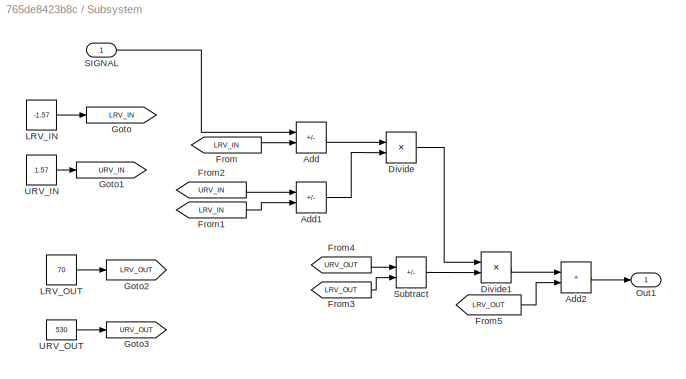
BLOCK [SubSystem] Subsystem
  Ports = [1, 1]
  RequestExecContextInheritance = off
BLOCK [Sum] Subsystem/Add
  IconShape = rectangular
  Inputs = +-
  Ports = [2, 1]
BLOCK [Sum] Subsystem/Add1
  IconShape = rectangular
  Inputs = +-
  Ports = [2, 1]
BLOCK [Sum] Subsystem/Add2
  IconShape = rectangular
  Ports = [2, 1]
BLOCK [Product] Subsystem/Divide
  Inputs = */
  Ports = [2, 1]
BLOCK [Product] Subsystem/Divide1
  Ports = [2, 1]
BLOCK [From] Subsystem/From
  GotoTag = LRV_IN
BLOCK [From] Subsystem/From1
  GotoTag = LRV_IN
BLOCK [From] Subsystem/From2
  GotoTag = URV_IN
BLOCK [From] Subsystem/From3
  GotoTag = LRV_OUT
BLOCK [From] Subsystem/From4
  GotoTag = URV_OUT
BLOCK [From] Subsystem/From5
  GotoTag = LRV_OUT
BLOCK [Goto] Subsystem/Goto
  GotoTag = LRV_IN
BLOCK [Goto] Subsystem/Goto1
  GotoTag = URV_IN
BLOCK [Goto] Subsystem/Goto2
  GotoTag = LRV_OUT
BLOCK [Goto] Subsystem/Goto3
  GotoTag = URV_OUT
BLOCK [Constant] Subsystem/LRV_IN
  Value = -1.57
BLOCK [Constant] Subsystem/LRV_OUT
  Value = 70
BLOCK [Outport] Subsystem/Out1
BLOCK [Inport] Subsystem/SIGNAL
BLOCK [Sum] Subsystem/Subtract
  IconShape = rectangular
  Inputs = +-
  Ports = [2, 1]
BLOCK [Constant] Subsystem/URV_IN
  Value = 1.57
BLOCK [Constant] Subsystem/URV_OUT
  Value = 530
BLOCK [SubSystem] Subsystem1
  Ports = [1, 1]
  RequestExecContextInheritance = off
BLOCK [Sum] Subsystem1/Add
  IconShape = rectangular
  Inputs = +-
  Ports = [2, 1]
BLOCK [Sum] Subsystem1/Add1
  IconShape = rectangular
  Inputs = +-
  Ports = [2, 1]
BLOCK [Sum] Subsystem1/Add2
  IconShape = rectangular
  Ports = [2, 1]
BLOCK [Product] Subsystem1/Divide
  Inputs = */
  Ports = [2, 1]
BLOCK [Product] Subsystem1/Divide1
  Ports = [2, 1]
BLOCK [From] Subsystem1/From
  GotoTag = LRV_IN
BLOCK [From] Subsystem1/From1
  GotoTag = LRV_IN
BLOCK [From] Subsystem1/From2
  GotoTag = URV_IN
BLOCK [From] Subsystem1/From3
  GotoTag = LRV_OUT
BLOCK [From] Subsystem1/From4
  GotoTag = URV_OUT
BLOCK [From] Subsystem1/From5
  GotoTag = LRV_OUT
BLOCK [Goto] Subsystem1/Goto
  GotoTag = LRV_IN
BLOCK [Goto] Subsystem1/Goto1
  GotoTag = URV_IN
BLOCK [Goto] Subsystem1/Goto2
  GotoTag = LRV_OUT
BLOCK [Goto] Subsystem1/Goto3
  GotoTag = URV_OUT
BLOCK [Constant] Subsystem1/LRV_IN
  Value = -1.57
BLOCK [Constant] Subsystem1/LRV_OUT
  Value = 440
BLOCK [Outport] Subsystem1/Out1
BLOCK [Inport] Subsystem1/SIGNAL
BLOCK [Sum] Subsystem1/Subtract
  IconShape = rectangular
  Inputs = +-
  Ports = [2, 1]
BLOCK [Constant] Subsystem1/URV_IN
  Value = 1.2
BLOCK [Constant] Subsystem1/URV_OUT
  Value = 100
BLOCK [SubSystem] Subsystem2
  Ports = [1, 1]
  RequestExecContextInheritance = off
BLOCK [Sum] Subsystem2/Add
  IconShape = rectangular
  Inputs = +-
  Ports = [2, 1]
BLOCK [Sum] Subsystem2/Add1
  IconShape = rectangular
  Inputs = +-
  Ports = [2, 1]
BLOCK [Sum] Subsystem2/Add2
  IconShape = rectangular
  Ports = [2, 1]
BLOCK [Product] Subsystem2/Divide
  Inputs = */
  Ports = [2, 1]
BLOCK [Product] Subsystem2/Divide1
  Ports = [2, 1]
BLOCK [From] Subsystem2/From
  GotoTag = LRV_IN
BLOCK [From] Subsystem2/From1
  GotoTag = LRV_IN
BLOCK [From] Subsystem2/From2
  GotoTag = URV_IN
BLOCK [From] Subsystem2/From3
  GotoTag = LRV_OUT
BLOCK [From] Subsystem2/From4
  GotoTag = URV_OUT
BLOCK [From] Subsystem2/From5
  GotoTag = LRV_OUT
BLOCK [Goto] Subsystem2/Goto
  GotoTag = LRV_IN
BLOCK [Goto] Subsystem2/Goto1
  GotoTag = URV_IN
BLOCK [Goto] Subsystem2/Goto2
  GotoTag = LRV_OUT
BLOCK [Goto] Subsystem2/Goto3
  GotoTag = URV_OUT
BLOCK [Constant] Subsystem2/LRV_IN
  Value = -1.55
BLOCK [Constant] Subsystem2/LRV_OUT
  Value = 100
BLOCK [Outport] Subsystem2/Out1
BLOCK [Inport] Subsystem2/SIGNAL
BLOCK [Sum] Subsystem2/Subtract
  IconShape = rectangular
  Inputs = +-
  Ports = [2, 1]
BLOCK [Constant] Subsystem2/URV_IN
  Value = 1.57
BLOCK [Constant] Subsystem2/URV_OUT
  Value = 500
BLOCK [SubSystem] Subsystem3
  Ports = [1, 1]
  RequestExecContextInheritance = off
BLOCK [Sum] Subsystem3/Add
  IconShape = rectangular
  Inputs = +-
  Ports = [2, 1]
BLOCK [Sum] Subsystem3/Add1
  IconShape = rectangular
  Inputs = +-
  Ports = [2, 1]
BLOCK [Sum] Subsystem3/Add2
  IconShape = rectangular
  Ports = [2, 1]
BLOCK [Product] Subsystem3/Divide
  Inputs = */
  Ports = [2, 1]
BLOCK [Product] Subsystem3/Divide1
  Ports = [2, 1]
BLOCK [From] Subsystem3/From
  GotoTag = LRV_IN
BLOCK [From] Subsystem3/From1
  GotoTag = LRV_IN
BLOCK [From] Subsystem3/From2
  GotoTag = URV_IN
BLOCK [From] Subsystem3/From3
  GotoTag = LRV_OUT
BLOCK [From] Subsystem3/From4
  GotoTag = URV_OUT
BLOCK [From] Subsystem3/From5
  GotoTag = LRV_OUT
BLOCK [Goto] Subsystem3/Goto
  GotoTag = LRV_IN
BLOCK [Goto] Subsystem3/Goto1
  GotoTag = URV_IN
BLOCK [Goto] Subsystem3/Goto2
  GotoTag = LRV_OUT
BLOCK [Goto] Subsystem3/Goto3
  GotoTag = URV_OUT
BLOCK [Constant] Subsystem3/LRV_IN
  Value = -0.97
BLOCK [Constant] Subsystem3/LRV_OUT
  Value = 140
BLOCK [Outport] Subsystem3/Out1
BLOCK [Inport] Subsystem3/SIGNAL
BLOCK [Sum] Subsystem3/Subtract
  IconShape = rectangular
  Inputs = +-
  Ports = [2, 1]
BLOCK [Constant] Subsystem3/URV_IN
  Value = 3.14
BLOCK [Constant] Subsystem3/URV_OUT
  Value = 550
BLOCK [Sum] Subtract
  Commented = on
  IconShape = rectangular
  Inputs = +-
  Ports = [2, 1]
BLOCK [Sum] Subtract1
  Commented = on
  IconShape = rectangular
  Ports = [2, 1]
BLOCK [Terminator] Terminator
  Commented = on
BLOCK [Terminator] Terminator1
  NameLocation = left
ANNOTATION Computed Torque Controller: qe
ANNOTATION Computed Torque Controller: dqe
ANNOTATION Computed Torque Controller: MassMatrix(ddqd - Kd*dqe - Kp*qe)
ANNOTATION Computed Torque Controller: Velocity Product Torque + Gravity Torque
ANNOTATION Computed Torque Controller: Computed Torque Controller
LINE Add:1 -> Mux:2
LINE Blank Message1:1 -> Bus Assignment1:1
LINE Blank Message2:1 -> Bus Assignment2:1
LINE Blank Message3:1 -> Bus Assignment3:1
LINE Blank Message:1 -> Bus Assignment:1
LINE Bus Assignment1:1 -> Publish:1
LINE Bus Assignment2:1 -> Publish1:1
LINE Bus Assignment3:1 -> Publish2:1
LINE Bus Assignment:1 -> Publish3:1
LINE Bus Selector1:1 -> Display1:1
LINE Bus Selector2:1 -> Display2:1
LINE Bus Selector3:1 -> Display3:1
NET Bus Selector4:1 -> Reshape1:1, Selector:1
LINE Bus Selector:1 -> Display:1
LINE Chart:1 -> Mux1:1
LINE Chart:2 -> Mux1:2
LINE Chart:3 -> Mux1:3
LINE Computed Torque Controller/Add1:1 -> Computed Torque Controller/Add5:2
LINE Computed Torque Controller/Add2:1 -> Computed Torque Controller/Kp:1
LINE Computed Torque Controller/Add3:1 -> Computed Torque Controller/Kd:1
LINE Computed Torque Controller/Add4:1 -> Computed Torque Controller/Add:1
LINE Computed Torque Controller/Add5:1 -> Computed Torque Controller/Saturation:1
LINE Computed Torque Controller/Add:1 -> Computed Torque Controller/Product:2
LINE Computed Torque Controller/Desired Configuration:1 -> Computed Torque Controller/Discrete Filter:1
LINE Computed Torque Controller/Discrete Derivative1:1 -> Computed Torque Controller/Add:2
NET Computed Torque Controller/Discrete Derivative:1 -> Computed Torque Controller/Add3:2, Computed Torque Controller/Discrete Derivative1:1
NET Computed Torque Controller/Discrete Filter:1 -> Computed Torque Controller/Add2:2, Computed Torque Controller/Discrete Derivative:1
LINE Computed Torque Controller/Gravity Torque:1 -> Computed Torque Controller/Add1:1
LINE Computed Torque Controller/Joint Space Mass Matrix:1 -> Computed Torque Controller/Product:1
LINE Computed Torque Controller/Kd:1 -> Computed Torque Controller/Add4:2
LINE Computed Torque Controller/Kp:1 -> Computed Torque Controller/Add4:1
NET Computed Torque Controller/Measured Configuration:1 -> Computed Torque Controller/Add2:1, Computed Torque Controller/Gravity Torque:1, Computed Torque Controller/Joint Space Mass Matrix:1, Computed Torque Controller/Velocity Product Torque:1
NET Computed Torque Controller/Measured Velocities:1 -> Computed Torque Controller/Add3:1, Computed Torque Controller/Velocity Product Torque:2
LINE Computed Torque Controller/Product:1 -> Computed Torque Controller/Add5:1
LINE Computed Torque Controller/Saturation:1 -> Computed Torque Controller/Applied Torque:1
LINE Computed Torque Controller/Velocity Product Torque:1 -> Computed Torque Controller/Add1:2
LINE Computed Torque Controller:1 -> Robot:1
LINE Constant1:1 -> Inverse Kinematics:2
LINE Constant2:1 -> Position_Selector:2
LINE Constant3:1 -> Position_Selector:3
LINE Constant4:1 -> Get Current Pose:1
LINE Constant5:1 -> Selector:2
LINE Constant:1 -> Position_Selector:1
LINE Data Type Conversion1:1 -> Inverse Kinematics:3
NET Data Type Conversion:1 -> Bus Assignment:2, Scope2:3
NET Delay:1 -> Data Type Conversion1:1, Reshape:1
LINE Demux1:1 -> Subtract1:1
LINE Demux1:2 -> Add:2
LINE Demux1:3 -> Subtract:1
LINE Demux2:1 -> Scope6:1
LINE Demux2:2 -> Scope6:2
LINE Demux2:3 -> Scope6:3
LINE Demux2:4 -> Scope6:4
NET Demux:1 -> Scope1:1, Subsystem:1
NET Demux:2 -> Scope1:2, Subsystem1:1
NET Demux:3 -> Scope1:3, Subsystem2:1
NET Demux:4 -> Scope1:4, Subsystem3:1
LINE Get Current Pose:1 -> Inverse Kinematics:1
LINE Inverse Kinematics:1 -> Delay:1
LINE Manipulator Dynamics Subsystem/Applied Joint Torques:1 -> Manipulator Dynamics Subsystem/Manipulator Dynamics Model:3
NET Manipulator Dynamics Subsystem/Integrator1:1 -> Manipulator Dynamics Subsystem/Manipulator Dynamics Model:1, Manipulator Dynamics Subsystem/Measured Configuration:1
NET Manipulator Dynamics Subsystem/Integrator:1 -> Manipulator Dynamics Subsystem/Integrator1:1, Manipulator Dynamics Subsystem/Manipulator Dynamics Model:2, Manipulator Dynamics Subsystem/Measured Velocity:1
LINE Manipulator Dynamics Subsystem/Manipulator Dynamics Model:1 -> Manipulator Dynamics Subsystem/Integrator:1
LINE Manipulator Dynamics Subsystem/Zero:1 -> Manipulator Dynamics Subsystem/Manipulator Dynamics Model:4
LINE Mux1:1 -> Scope5:1
LINE Mux:1 -> Scope3:1
NET Position_Selector:1 -> Scope4:1, Terminator1:1
LINE Repeating Sequence Stair1:1 -> Subtract:2
LINE Repeating Sequence Stair2:1 -> Subtract1:2
LINE Repeating Sequence Stair:1 -> Add:1
LINE Reshape1:1 -> Demux2:1
NET Reshape:1 -> Demux:1, Scope:3
LINE Robot/From_tau_Actuator10:1 -> Robot/SPS tau_Actuator10:1
LINE Robot/From_tau_Actuator11:1 -> Robot/SPS tau_Actuator11:1
LINE Robot/From_tau_Actuator1:1 -> Robot/SPS tau_Actuator1:1
LINE Robot/From_tau_Actuator2:1 -> Robot/SPS tau_Actuator2:1
LINE Robot/From_tau_Actuator3:1 -> Robot/SPS tau_Actuator3:1
LINE Robot/From_tau_Actuator4:1 -> Robot/SPS tau_Actuator4:1
LINE Robot/From_tau_Actuator5:1 -> Robot/SPS tau_Actuator5:1
LINE Robot/From_tau_Actuator6:1 -> Robot/SPS tau_Actuator6:1
LINE Robot/From_tau_Actuator7:1 -> Robot/SPS tau_Actuator7:1
LINE Robot/From_tau_Actuator8:1 -> Robot/SPS tau_Actuator8:1
LINE Robot/From_tau_Actuator9:1 -> Robot/SPS tau_Actuator9:1
LINE Robot/PSS Q_Actuator10:1 -> Robot/Goto_Q_Actuator10:1
LINE Robot/PSS Q_Actuator11:1 -> Robot/Goto_Q_Actuator11:1
LINE Robot/PSS Q_Actuator1:1 -> Robot/Goto_Q_Actuator1:1
LINE Robot/PSS Q_Actuator2:1 -> Robot/Goto_Q_Actuator2:1
LINE Robot/PSS Q_Actuator3:1 -> Robot/Goto_Q_Actuator3:1
LINE Robot/PSS Q_Actuator4:1 -> Robot/Goto_Q_Actuator4:1
LINE Robot/PSS Q_Actuator5:1 -> Robot/Goto_Q_Actuator5:1
LINE Robot/PSS Q_Actuator6:1 -> Robot/Goto_Q_Actuator6:1
LINE Robot/PSS Q_Actuator7:1 -> Robot/Goto_Q_Actuator7:1
LINE Robot/PSS Q_Actuator8:1 -> Robot/Goto_Q_Actuator8:1
LINE Robot/PSS Q_Actuator9:1 -> Robot/Goto_Q_Actuator9:1
LINE Robot/PSS Qddot_Actuator10:1 -> Robot/Goto_Qddot_Actuator10:1
LINE Robot/PSS Qddot_Actuator11:1 -> Robot/Goto_Qddot_Actuator11:1
LINE Robot/PSS Qddot_Actuator1:1 -> Robot/Goto_Qddot_Actuator1:1
LINE Robot/PSS Qddot_Actuator2:1 -> Robot/Goto_Qddot_Actuator2:1
LINE Robot/PSS Qddot_Actuator3:1 -> Robot/Goto_Qddot_Actuator3:1
LINE Robot/PSS Qddot_Actuator4:1 -> Robot/Goto_Qddot_Actuator4:1
LINE Robot/PSS Qddot_Actuator5:1 -> Robot/Goto_Qddot_Actuator5:1
LINE Robot/PSS Qddot_Actuator6:1 -> Robot/Goto_Qddot_Actuator6:1
LINE Robot/PSS Qddot_Actuator7:1 -> Robot/Goto_Qddot_Actuator7:1
LINE Robot/PSS Qddot_Actuator8:1 -> Robot/Goto_Qddot_Actuator8:1
LINE Robot/PSS Qddot_Actuator9:1 -> Robot/Goto_Qddot_Actuator9:1
LINE Robot/PSS Qdot_Actuator10:1 -> Robot/Goto_Qdot_Actuator10:1
LINE Robot/PSS Qdot_Actuator11:1 -> Robot/Goto_Qdot_Actuator11:1
LINE Robot/PSS Qdot_Actuator1:1 -> Robot/Goto_Qdot_Actuator1:1
LINE Robot/PSS Qdot_Actuator2:1 -> Robot/Goto_Qdot_Actuator2:1
LINE Robot/PSS Qdot_Actuator3:1 -> Robot/Goto_Qdot_Actuator3:1
LINE Robot/PSS Qdot_Actuator4:1 -> Robot/Goto_Qdot_Actuator4:1
LINE Robot/PSS Qdot_Actuator5:1 -> Robot/Goto_Qdot_Actuator5:1
LINE Robot/PSS Qdot_Actuator6:1 -> Robot/Goto_Qdot_Actuator6:1
LINE Robot/PSS Qdot_Actuator7:1 -> Robot/Goto_Qdot_Actuator7:1
LINE Robot/PSS Qdot_Actuator8:1 -> Robot/Goto_Qdot_Actuator8:1
LINE Robot/PSS Qdot_Actuator9:1 -> Robot/Goto_Qdot_Actuator9:1
LINE Robot/Q_Actuator1:1 -> Robot/Q_State Mux:1
LINE Robot/Q_Actuator2:1 -> Robot/Q_State Mux:2
LINE Robot/Q_Actuator3:1 -> Robot/Q_State Mux:3
LINE Robot/Q_Actuator4:1 -> Robot/Q_State Mux:4
LINE Robot/Q_State Mux:1 -> Robot/Q_out:1
LINE Robot/Qddot_Actuator1:1 -> Robot/Qddot_State Mux:1
LINE Robot/Qddot_Actuator2:1 -> Robot/Qddot_State Mux:2
LINE Robot/Qddot_Actuator3:1 -> Robot/Qddot_State Mux:3
LINE Robot/Qddot_Actuator4:1 -> Robot/Qddot_State Mux:4
LINE Robot/Qddot_State Mux:1 -> Robot/Qddot_out:1
LINE Robot/Qdot_Actuator1:1 -> Robot/Qdot_State Mux:1
LINE Robot/Qdot_Actuator2:1 -> Robot/Qdot_State Mux:2
LINE Robot/Qdot_Actuator3:1 -> Robot/Qdot_State Mux:3
LINE Robot/Qdot_Actuator4:1 -> Robot/Qdot_State Mux:4
LINE Robot/Qdot_State Mux:1 -> Robot/Qdot_out:1
LINE Robot/tau_Demux:1 -> Robot/tau_Actuator1:1
LINE Robot/tau_Demux:2 -> Robot/tau_Actuator2:1
LINE Robot/tau_Demux:3 -> Robot/tau_Actuator3:1
LINE Robot/tau_Demux:4 -> Robot/tau_Actuator4:1
LINE Robot/tau_in:1 -> Robot/tau_Demux:1
LINE Robot:1 -> Computed Torque Controller:1
LINE Robot:2 -> Computed Torque Controller:2
LINE Robot:3 -> Terminator:1
LINE Selector:1 -> Display5:1
LINE Subscribe1:2 -> Bus Selector1:1
LINE Subscribe2:2 -> Bus Selector2:1
LINE Subscribe3:2 -> Bus Selector3:1
LINE Subscribe4:2 -> Bus Selector4:1
LINE Subscribe:2 -> Bus Selector:1
LINE Subsystem/Add1:1 -> Subsystem/Divide:2
LINE Subsystem/Add2:1 -> Subsystem/Out1:1
LINE Subsystem/Add:1 -> Subsystem/Divide:1
LINE Subsystem/Divide1:1 -> Subsystem/Add2:1
LINE Subsystem/Divide:1 -> Subsystem/Divide1:1
LINE Subsystem/From1:1 -> Subsystem/Add1:2
LINE Subsystem/From2:1 -> Subsystem/Add1:1
LINE Subsystem/From3:1 -> Subsystem/Subtract:2
LINE Subsystem/From4:1 -> Subsystem/Subtract:1
LINE Subsystem/From5:1 -> Subsystem/Add2:2
LINE Subsystem/From:1 -> Subsystem/Add:2
LINE Subsystem/LRV_IN:1 -> Subsystem/Goto:1
LINE Subsystem/LRV_OUT:1 -> Subsystem/Goto2:1
LINE Subsystem/SIGNAL:1 -> Subsystem/Add:1
LINE Subsystem/Subtract:1 -> Subsystem/Divide1:2
LINE Subsystem/URV_IN:1 -> Subsystem/Goto1:1
LINE Subsystem/URV_OUT:1 -> Subsystem/Goto3:1
LINE Subsystem1/Add1:1 -> Subsystem1/Divide:2
LINE Subsystem1/Add2:1 -> Subsystem1/Out1:1
LINE Subsystem1/Add:1 -> Subsystem1/Divide:1
LINE Subsystem1/Divide1:1 -> Subsystem1/Add2:1
LINE Subsystem1/Divide:1 -> Subsystem1/Divide1:1
LINE Subsystem1/From1:1 -> Subsystem1/Add1:2
LINE Subsystem1/From2:1 -> Subsystem1/Add1:1
LINE Subsystem1/From3:1 -> Subsystem1/Subtract:2
LINE Subsystem1/From4:1 -> Subsystem1/Subtract:1
LINE Subsystem1/From5:1 -> Subsystem1/Add2:2
LINE Subsystem1/From:1 -> Subsystem1/Add:2
LINE Subsystem1/LRV_IN:1 -> Subsystem1/Goto:1
LINE Subsystem1/LRV_OUT:1 -> Subsystem1/Goto2:1
LINE Subsystem1/SIGNAL:1 -> Subsystem1/Add:1
LINE Subsystem1/Subtract:1 -> Subsystem1/Divide1:2
LINE Subsystem1/URV_IN:1 -> Subsystem1/Goto1:1
LINE Subsystem1/URV_OUT:1 -> Subsystem1/Goto3:1
LINE Subsystem1:1 -> Bus Assignment1:2
LINE Subsystem2/Add1:1 -> Subsystem2/Divide:2
LINE Subsystem2/Add2:1 -> Subsystem2/Out1:1
LINE Subsystem2/Add:1 -> Subsystem2/Divide:1
LINE Subsystem2/Divide1:1 -> Subsystem2/Add2:1
LINE Subsystem2/Divide:1 -> Subsystem2/Divide1:1
LINE Subsystem2/From1:1 -> Subsystem2/Add1:2
LINE Subsystem2/From2:1 -> Subsystem2/Add1:1
LINE Subsystem2/From3:1 -> Subsystem2/Subtract:2
LINE Subsystem2/From4:1 -> Subsystem2/Subtract:1
LINE Subsystem2/From5:1 -> Subsystem2/Add2:2
LINE Subsystem2/From:1 -> Subsystem2/Add:2
LINE Subsystem2/LRV_IN:1 -> Subsystem2/Goto:1
LINE Subsystem2/LRV_OUT:1 -> Subsystem2/Goto2:1
LINE Subsystem2/SIGNAL:1 -> Subsystem2/Add:1
LINE Subsystem2/Subtract:1 -> Subsystem2/Divide1:2
LINE Subsystem2/URV_IN:1 -> Subsystem2/Goto1:1
LINE Subsystem2/URV_OUT:1 -> Subsystem2/Goto3:1
LINE Subsystem2:1 -> Bus Assignment2:2
LINE Subsystem3/Add1:1 -> Subsystem3/Divide:2
LINE Subsystem3/Add2:1 -> Subsystem3/Out1:1
LINE Subsystem3/Add:1 -> Subsystem3/Divide:1
LINE Subsystem3/Divide1:1 -> Subsystem3/Add2:1
LINE Subsystem3/Divide:1 -> Subsystem3/Divide1:1
LINE Subsystem3/From1:1 -> Subsystem3/Add1:2
LINE Subsystem3/From2:1 -> Subsystem3/Add1:1
LINE Subsystem3/From3:1 -> Subsystem3/Subtract:2
LINE Subsystem3/From4:1 -> Subsystem3/Subtract:1
LINE Subsystem3/From5:1 -> Subsystem3/Add2:2
LINE Subsystem3/From:1 -> Subsystem3/Add:2
LINE Subsystem3/LRV_IN:1 -> Subsystem3/Goto:1
LINE Subsystem3/LRV_OUT:1 -> Subsystem3/Goto2:1
LINE Subsystem3/SIGNAL:1 -> Subsystem3/Add:1
LINE Subsystem3/Subtract:1 -> Subsystem3/Divide1:2
LINE Subsystem3/URV_IN:1 -> Subsystem3/Goto1:1
LINE Subsystem3/URV_OUT:1 -> Subsystem3/Goto3:1
LINE Subsystem3:1 -> Bus Assignment3:2
LINE Subsystem:1 -> Data Type Conversion:1
LINE Subtract1:1 -> Mux:1
LINE Subtract:1 -> Mux:3
PLINE Robot/Actuator1:LConn1 -- Robot/base_link:RConn1
PLINE Robot/Actuator1:LConn2 -- Robot/SPS tau_Actuator1:RConn1
PLINE Robot/Actuator1:RConn1 -- Robot/Shoulder_Link:LConn1
PLINE Robot/Actuator1:RConn2 -- Robot/PSS Q_Actuator1:LConn1
PLINE Robot/Actuator1:RConn3 -- Robot/PSS Qdot_Actuator1:LConn1
PLINE Robot/Actuator1:RConn4 -- Robot/PSS Qddot_Actuator1:LConn1
PLINE Robot/Actuator2:LConn1 -- Robot/Shoulder_Link:RConn1
PLINE Robot/Actuator2:LConn2 -- Robot/SPS tau_Actuator2:RConn1
PLINE Robot/Actuator2:RConn1 -- Robot/HalfArm1_Link:LConn1
PLINE Robot/Actuator2:RConn2 -- Robot/PSS Q_Actuator2:LConn1
PLINE Robot/Actuator2:RConn3 -- Robot/PSS Qdot_Actuator2:LConn1
PLINE Robot/Actuator2:RConn4 -- Robot/PSS Qddot_Actuator2:LConn1
PLINE Robot/Actuator3:LConn1 -- Robot/HalfArm1_Link:RConn1
PLINE Robot/Actuator3:LConn2 -- Robot/SPS tau_Actuator3:RConn1
PLINE Robot/Actuator3:RConn1 -- Robot/HalfArm2_Link:LConn1
PLINE Robot/Actuator3:RConn2 -- Robot/PSS Q_Actuator3:LConn1
PLINE Robot/Actuator3:RConn3 -- Robot/PSS Qdot_Actuator3:LConn1
PLINE Robot/Actuator3:RConn4 -- Robot/PSS Qddot_Actuator3:LConn1
PLINE Robot/Actuator4:LConn1 -- Robot/HalfArm2_Link:RConn1
PLINE Robot/Actuator4:LConn2 -- Robot/SPS tau_Actuator4:RConn1
PLINE Robot/Actuator4:RConn1 -- Robot/ForeArm_Link:LConn1
PLINE Robot/Actuator4:RConn2 -- Robot/PSS Q_Actuator4:LConn1
PLINE Robot/Actuator4:RConn3 -- Robot/PSS Qdot_Actuator4:LConn1
PLINE Robot/Actuator4:RConn4 -- Robot/PSS Qddot_Actuator4:LConn1
PLINE Robot/Actuator5:LConn1 -- Robot/ForeArm_Link:RConn1
PLINE Robot/Actuator5:LConn2 -- Robot/SPS tau_Actuator5:RConn1
PLINE Robot/Actuator5:RConn1 -- Robot/Wrist1_Link:LConn1
PLINE Robot/Actuator5:RConn2 -- Robot/PSS Q_Actuator5:LConn1
PLINE Robot/Actuator5:RConn3 -- Robot/PSS Qdot_Actuator5:LConn1
PLINE Robot/Actuator5:RConn4 -- Robot/PSS Qddot_Actuator5:LConn1
PLINE Robot/Actuator6:LConn1 -- Robot/Wrist1_Link:RConn1
PLINE Robot/Actuator6:LConn2 -- Robot/SPS tau_Actuator6:RConn1
PLINE Robot/Actuator6:RConn1 -- Robot/Wrist2_Link:LConn1
PLINE Robot/Actuator6:RConn2 -- Robot/PSS Q_Actuator6:LConn1
PLINE Robot/Actuator6:RConn3 -- Robot/PSS Qdot_Actuator6:LConn1
PLINE Robot/Actuator6:RConn4 -- Robot/PSS Qddot_Actuator6:LConn1
PLINE Robot/Actuator7:LConn1 -- Robot/Wrist2_Link:RConn1
PLINE Robot/Actuator7:LConn2 -- Robot/SPS tau_Actuator7:RConn1
PLINE Robot/Actuator7:RConn1 -- Robot/Bracelet_Link:LConn1
PLINE Robot/Actuator7:RConn2 -- Robot/PSS Q_Actuator7:LConn1
PLINE Robot/Actuator7:RConn3 -- Robot/PSS Qdot_Actuator7:LConn1
PLINE Robot/Actuator7:RConn4 -- Robot/PSS Qddot_Actuator7:LConn1
PLINE Robot/Base_Gear_Solidbody_v3_1/F1:RConn1 -- Robot/Base_Gear_Solidbody_v3_1/Rev10_AxisTransform:RConn1
PLINE Robot/Base_Gear_Solidbody_v3_1/F:RConn1 -- Robot/Base_Gear_Solidbody_v3_1/Rev7_AxisInvTransform:RConn1
PLINE Robot/Base_Gear_Solidbody_v3_1/Inertia:RConn1 -- Robot/Base_Gear_Solidbody_v3_1/InertiaOriginTransform:RConn1
PNET net1: Robot/Base_Gear_Solidbody_v3_1/InertiaOriginTransform:LConn1 -- Robot/Base_Gear_Solidbody_v3_1/ReferenceFrame:RConn1 -- Robot/Base_Gear_Solidbody_v3_1/Rev10_OriginTransform:LConn1 -- Robot/Base_Gear_Solidbody_v3_1/Rev7_AxisInvTransform:LConn1 -- Robot/Base_Gear_Solidbody_v3_1/VisualOriginTransform:LConn1
PLINE Robot/Base_Gear_Solidbody_v3_1/Rev10_AxisTransform:LConn1 -- Robot/Base_Gear_Solidbody_v3_1/Rev10_OriginTransform:RConn1
PLINE Robot/Base_Gear_Solidbody_v3_1/Visual:RConn1 -- Robot/Base_Gear_Solidbody_v3_1/VisualOriginTransform:RConn1
PLINE Robot/Base_Gear_Solidbody_v3_1:LConn1 -- Robot/Rev7:RConn1
PLINE Robot/Base_Gear_Solidbody_v3_1:RConn1 -- Robot/Rev10:LConn1
PNET net2: Robot/Bracelet_Link/Actuator7_AxisInvTransform:LConn1 -- Robot/Bracelet_Link/Endeffector_OriginTransform:LConn1 -- Robot/Bracelet_Link/InertiaOriginTransform:LConn1 -- Robot/Bracelet_Link/ReferenceFrame:RConn1
PLINE Robot/Bracelet_Link/Actuator7_AxisInvTransform:RConn1 -- Robot/Bracelet_Link/F:RConn1
PLINE Robot/Bracelet_Link/Endeffector_OriginTransform:RConn1 -- Robot/Bracelet_Link/F1:RConn1
PLINE Robot/Bracelet_Link/Inertia:RConn1 -- Robot/Bracelet_Link/InertiaOriginTransform:RConn1
PLINE Robot/Bracelet_Link:RConn1 -- Robot/Endeffector:LConn1
PNET net3: Robot/EndEffector_Link/F:RConn1 -- Robot/EndEffector_Link/InertiaOriginTransform:LConn1 -- Robot/EndEffector_Link/ReferenceFrame:RConn1
PLINE Robot/EndEffector_Link/Inertia:RConn1 -- Robot/EndEffector_Link/InertiaOriginTransform:RConn1
PLINE Robot/EndEffector_Link:LConn1 -- Robot/Endeffector:RConn1
PNET net4: Robot/ForeArm_Link/Actuator4_AxisInvTransform:LConn1 -- Robot/ForeArm_Link/Actuator5_OriginTransform:LConn1 -- Robot/ForeArm_Link/InertiaOriginTransform:LConn1 -- Robot/ForeArm_Link/ReferenceFrame:RConn1
PLINE Robot/ForeArm_Link/Actuator4_AxisInvTransform:RConn1 -- Robot/ForeArm_Link/F:RConn1
PLINE Robot/ForeArm_Link/Actuator5_AxisTransform:LConn1 -- Robot/ForeArm_Link/Actuator5_OriginTransform:RConn1
PLINE Robot/ForeArm_Link/Actuator5_AxisTransform:RConn1 -- Robot/ForeArm_Link/F1:RConn1
PLINE Robot/ForeArm_Link/Inertia:RConn1 -- Robot/ForeArm_Link/InertiaOriginTransform:RConn1
PLINE Robot/Gripper_Arm_Solidbody_v2_1/F1:RConn1 -- Robot/Gripper_Arm_Solidbody_v2_1/Rigid9_OriginTransform:RConn1
PLINE Robot/Gripper_Arm_Solidbody_v2_1/F:RConn1 -- Robot/Gripper_Arm_Solidbody_v2_1/Rev11_AxisInvTransform:RConn1
PLINE Robot/Gripper_Arm_Solidbody_v2_1/Inertia:RConn1 -- Robot/Gripper_Arm_Solidbody_v2_1/InertiaOriginTransform:RConn1
PNET net5: Robot/Gripper_Arm_Solidbody_v2_1/InertiaOriginTransform:LConn1 -- Robot/Gripper_Arm_Solidbody_v2_1/ReferenceFrame:RConn1 -- Robot/Gripper_Arm_Solidbody_v2_1/Rev11_AxisInvTransform:LConn1 -- Robot/Gripper_Arm_Solidbody_v2_1/Rigid9_OriginTransform:LConn1 -- Robot/Gripper_Arm_Solidbody_v2_1/VisualOriginTransform:LConn1
PLINE Robot/Gripper_Arm_Solidbody_v2_1/Visual:RConn1 -- Robot/Gripper_Arm_Solidbody_v2_1/VisualOriginTransform:RConn1
PLINE Robot/Gripper_Arm_Solidbody_v2_1:LConn1 -- Robot/Rev11:RConn1
PLINE Robot/Gripper_Arm_Solidbody_v2_1:RConn1 -- Robot/Rigid9:LConn1
PNET net6: Robot/Gripper_Dumb_Solid_v1_1/F:RConn1 -- Robot/Gripper_Dumb_Solid_v1_1/InertiaOriginTransform:LConn1 -- Robot/Gripper_Dumb_Solid_v1_1/ReferenceFrame:RConn1 -- Robot/Gripper_Dumb_Solid_v1_1/VisualOriginTransform:LConn1
PLINE Robot/Gripper_Dumb_Solid_v1_1/Inertia:RConn1 -- Robot/Gripper_Dumb_Solid_v1_1/InertiaOriginTransform:RConn1
PLINE Robot/Gripper_Dumb_Solid_v1_1/Visual:RConn1 -- Robot/Gripper_Dumb_Solid_v1_1/VisualOriginTransform:RConn1
PLINE Robot/Gripper_Dumb_Solid_v1_1:LConn1 -- Robot/Rigid9:RConn1
PNET net7: Robot/HalfArm1_Link/Actuator2_AxisInvTransform:LConn1 -- Robot/HalfArm1_Link/Actuator3_OriginTransform:LConn1 -- Robot/HalfArm1_Link/InertiaOriginTransform:LConn1 -- Robot/HalfArm1_Link/ReferenceFrame:RConn1
PLINE Robot/HalfArm1_Link/Actuator2_AxisInvTransform:RConn1 -- Robot/HalfArm1_Link/F:RConn1
PLINE Robot/HalfArm1_Link/Actuator3_AxisTransform:LConn1 -- Robot/HalfArm1_Link/Actuator3_OriginTransform:RConn1
PLINE Robot/HalfArm1_Link/Actuator3_AxisTransform:RConn1 -- Robot/HalfArm1_Link/F1:RConn1
PLINE Robot/HalfArm1_Link/Inertia:RConn1 -- Robot/HalfArm1_Link/InertiaOriginTransform:RConn1
PNET net8: Robot/HalfArm2_Link/Actuator3_AxisInvTransform:LConn1 -- Robot/HalfArm2_Link/Actuator4_OriginTransform:LConn1 -- Robot/HalfArm2_Link/InertiaOriginTransform:LConn1 -- Robot/HalfArm2_Link/ReferenceFrame:RConn1
PLINE Robot/HalfArm2_Link/Actuator3_AxisInvTransform:RConn1 -- Robot/HalfArm2_Link/F:RConn1
PLINE Robot/HalfArm2_Link/Actuator4_AxisTransform:LConn1 -- Robot/HalfArm2_Link/Actuator4_OriginTransform:RConn1
PLINE Robot/HalfArm2_Link/Actuator4_AxisTransform:RConn1 -- Robot/HalfArm2_Link/F1:RConn1
PLINE Robot/HalfArm2_Link/Inertia:RConn1 -- Robot/HalfArm2_Link/InertiaOriginTransform:RConn1
PLINE Robot/Lower_Arm_Solidbody_v2_1/F1:RConn1 -- Robot/Lower_Arm_Solidbody_v2_1/Rev3_AxisTransform:RConn1
PLINE Robot/Lower_Arm_Solidbody_v2_1/F:RConn1 -- Robot/Lower_Arm_Solidbody_v2_1/Rev10_AxisInvTransform:RConn1
PLINE Robot/Lower_Arm_Solidbody_v2_1/Inertia:RConn1 -- Robot/Lower_Arm_Solidbody_v2_1/InertiaOriginTransform:RConn1
PNET net9: Robot/Lower_Arm_Solidbody_v2_1/InertiaOriginTransform:LConn1 -- Robot/Lower_Arm_Solidbody_v2_1/ReferenceFrame:RConn1 -- Robot/Lower_Arm_Solidbody_v2_1/Rev10_AxisInvTransform:LConn1 -- Robot/Lower_Arm_Solidbody_v2_1/Rev3_OriginTransform:LConn1 -- Robot/Lower_Arm_Solidbody_v2_1/VisualOriginTransform:LConn1
PLINE Robot/Lower_Arm_Solidbody_v2_1/Rev3_AxisTransform:LConn1 -- Robot/Lower_Arm_Solidbody_v2_1/Rev3_OriginTransform:RConn1
PLINE Robot/Lower_Arm_Solidbody_v2_1/Visual:RConn1 -- Robot/Lower_Arm_Solidbody_v2_1/VisualOriginTransform:RConn1
PLINE Robot/Lower_Arm_Solidbody_v2_1:LConn1 -- Robot/Rev10:RConn1
PLINE Robot/Lower_Arm_Solidbody_v2_1:RConn1 -- Robot/Rev3:LConn1
PNET net10: Robot/MechanismConfiguration1:RConn1 -- Robot/Solver Configuration1:RConn1 -- Robot/World1:RConn1 -- Robot/base_link1:LConn1
PNET net11: Robot/MechanismConfiguration:RConn1 -- Robot/Solver Configuration:RConn1 -- Robot/World:RConn1 -- Robot/base_link:LConn1
PLINE Robot/Mid_Arm_Solidbody_v2_1/F1:RConn1 -- Robot/Mid_Arm_Solidbody_v2_1/Rev11_AxisTransform:RConn1
PLINE Robot/Mid_Arm_Solidbody_v2_1/F:RConn1 -- Robot/Mid_Arm_Solidbody_v2_1/Rev3_AxisInvTransform:RConn1
PLINE Robot/Mid_Arm_Solidbody_v2_1/Inertia:RConn1 -- Robot/Mid_Arm_Solidbody_v2_1/InertiaOriginTransform:RConn1
PNET net12: Robot/Mid_Arm_Solidbody_v2_1/InertiaOriginTransform:LConn1 -- Robot/Mid_Arm_Solidbody_v2_1/ReferenceFrame:RConn1 -- Robot/Mid_Arm_Solidbody_v2_1/Rev11_OriginTransform:LConn1 -- Robot/Mid_Arm_Solidbody_v2_1/Rev3_AxisInvTransform:LConn1 -- Robot/Mid_Arm_Solidbody_v2_1/VisualOriginTransform:LConn1
PLINE Robot/Mid_Arm_Solidbody_v2_1/Rev11_AxisTransform:LConn1 -- Robot/Mid_Arm_Solidbody_v2_1/Rev11_OriginTransform:RConn1
PLINE Robot/Mid_Arm_Solidbody_v2_1/Visual:RConn1 -- Robot/Mid_Arm_Solidbody_v2_1/VisualOriginTransform:RConn1
PLINE Robot/Mid_Arm_Solidbody_v2_1:LConn1 -- Robot/Rev3:RConn1
PLINE Robot/Mid_Arm_Solidbody_v2_1:RConn1 -- Robot/Rev11:LConn1
PLINE Robot/PSS Q_Actuator10:LConn1 -- Robot/Rev3:RConn2
PLINE Robot/PSS Q_Actuator11:LConn1 -- Robot/Rev11:RConn2
PLINE Robot/PSS Q_Actuator8:LConn1 -- Robot/Rev7:RConn3
PLINE Robot/PSS Q_Actuator9:LConn1 -- Robot/Rev10:RConn2
PLINE Robot/PSS Qddot_Actuator10:LConn1 -- Robot/Rev3:RConn4
PLINE Robot/PSS Qddot_Actuator11:LConn1 -- Robot/Rev11:RConn4
PLINE Robot/PSS Qddot_Actuator8:LConn1 -- Robot/Rev7:RConn4
PLINE Robot/PSS Qddot_Actuator9:LConn1 -- Robot/Rev10:RConn4
PLINE Robot/PSS Qdot_Actuator10:LConn1 -- Robot/Rev3:RConn3
PLINE Robot/PSS Qdot_Actuator11:LConn1 -- Robot/Rev11:RConn3
PLINE Robot/PSS Qdot_Actuator8:LConn1 -- Robot/Rev7:RConn2
PLINE Robot/PSS Qdot_Actuator9:LConn1 -- Robot/Rev10:RConn3
PLINE Robot/Rev10:LConn2 -- Robot/SPS tau_Actuator9:RConn1
PLINE Robot/Rev11:LConn2 -- Robot/SPS tau_Actuator11:RConn1
PLINE Robot/Rev3:LConn2 -- Robot/SPS tau_Actuator10:RConn1
PLINE Robot/Rev7:LConn1 -- Robot/base_link1:RConn1
PLINE Robot/Rev7:LConn2 -- Robot/SPS tau_Actuator8:RConn1
PNET net13: Robot/Shoulder_Link/Actuator1_AxisInvTransform:LConn1 -- Robot/Shoulder_Link/Actuator2_OriginTransform:LConn1 -- Robot/Shoulder_Link/InertiaOriginTransform:LConn1 -- Robot/Shoulder_Link/ReferenceFrame:RConn1
PLINE Robot/Shoulder_Link/Actuator1_AxisInvTransform:RConn1 -- Robot/Shoulder_Link/F:RConn1
PLINE Robot/Shoulder_Link/Actuator2_AxisTransform:LConn1 -- Robot/Shoulder_Link/Actuator2_OriginTransform:RConn1
PLINE Robot/Shoulder_Link/Actuator2_AxisTransform:RConn1 -- Robot/Shoulder_Link/F1:RConn1
PLINE Robot/Shoulder_Link/Inertia:RConn1 -- Robot/Shoulder_Link/InertiaOriginTransform:RConn1
PNET net14: Robot/Wrist1_Link/Actuator5_AxisInvTransform:LConn1 -- Robot/Wrist1_Link/Actuator6_OriginTransform:LConn1 -- Robot/Wrist1_Link/InertiaOriginTransform:LConn1 -- Robot/Wrist1_Link/ReferenceFrame:RConn1
PLINE Robot/Wrist1_Link/Actuator5_AxisInvTransform:RConn1 -- Robot/Wrist1_Link/F:RConn1
PLINE Robot/Wrist1_Link/Actuator6_AxisTransform:LConn1 -- Robot/Wrist1_Link/Actuator6_OriginTransform:RConn1
PLINE Robot/Wrist1_Link/Actuator6_AxisTransform:RConn1 -- Robot/Wrist1_Link/F1:RConn1
PLINE Robot/Wrist1_Link/Inertia:RConn1 -- Robot/Wrist1_Link/InertiaOriginTransform:RConn1
PNET net15: Robot/Wrist2_Link/Actuator6_AxisInvTransform:LConn1 -- Robot/Wrist2_Link/Actuator7_OriginTransform:LConn1 -- Robot/Wrist2_Link/InertiaOriginTransform:LConn1 -- Robot/Wrist2_Link/ReferenceFrame:RConn1
PLINE Robot/Wrist2_Link/Actuator6_AxisInvTransform:RConn1 -- Robot/Wrist2_Link/F:RConn1
PLINE Robot/Wrist2_Link/Actuator7_AxisTransform:LConn1 -- Robot/Wrist2_Link/Actuator7_OriginTransform:RConn1
PLINE Robot/Wrist2_Link/Actuator7_AxisTransform:RConn1 -- Robot/Wrist2_Link/F1:RConn1
PLINE Robot/Wrist2_Link/Inertia:RConn1 -- Robot/Wrist2_Link/InertiaOriginTransform:RConn1
PLINE Robot/base_link/Actuator1_AxisTransform:LConn1 -- Robot/base_link/Actuator1_OriginTransform:RConn1
PLINE Robot/base_link/Actuator1_AxisTransform:RConn1 -- Robot/base_link/F1:RConn1
PNET net16: Robot/base_link/Actuator1_OriginTransform:LConn1 -- Robot/base_link/F:RConn1 -- Robot/base_link/ReferenceFrame:RConn1
PLINE Robot/base_link1/F1:RConn1 -- Robot/base_link1/Rev7_AxisTransform:RConn1
PNET net17: Robot/base_link1/F:RConn1 -- Robot/base_link1/ReferenceFrame:RConn1 -- Robot/base_link1/Rev7_OriginTransform:LConn1 -- Robot/base_link1/VisualOriginTransform:LConn1
PLINE Robot/base_link1/Rev7_AxisTransform:LConn1 -- Robot/base_link1/Rev7_OriginTransform:RConn1
PLINE Robot/base_link1/Visual:RConn1 -- Robot/base_link1/VisualOriginTransform:RConn1
note: NET lines group one-source signal fan-out (src -> all destinations, sorted); 1:1 wires keep LINE; PNET lines group multi-terminal physical nets as a canonical sorted terminal list (undirected conserving connections); 2-terminal nets keep the pairwise PLINE form
CHART Chart states=3 transitions=4
  STATE_LABEL 'Pos1\nduring:\nX = 0.05;\nY = 0;\nZ = 0.05;'
  STATE_LABEL 'Pos2\nduring:\nX = 0.06;\nY = 0.01;\nZ = 0.04;'
  STATE_LABEL 'Pos3\nduring:\nX = 0.07;\nY = 0.02;\nZ = 0.03;'
CHART Position_Selector states=3 transitions=4
  STATE_LABEL 'Pos1\nduring:\noutput_pos = [0.05;0;0.05];'
  STATE_LABEL 'Pos2\nduring:\noutput_pos = [0.06;0.01;0.04];'
  STATE_LABEL 'Pos3\nduring:\noutput_pos = [0.07;0.02;0.03];'
CHART  states=0 transitions=0
CHART  states=0 transitions=0
